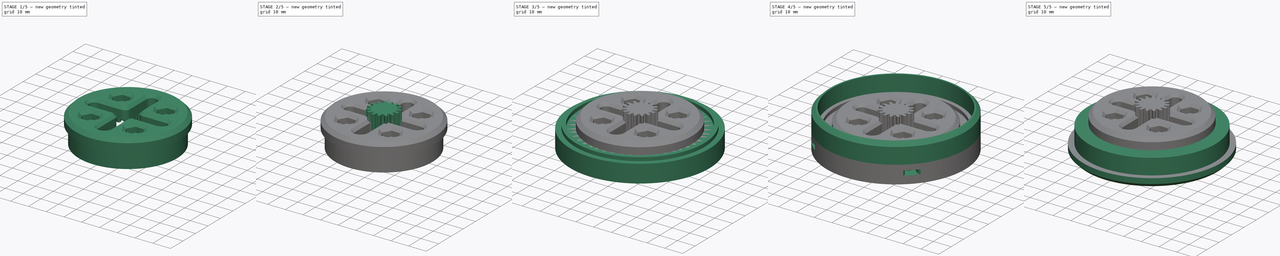
[diagram: build sequence overview — one tinted view per stage of 5, left to right]
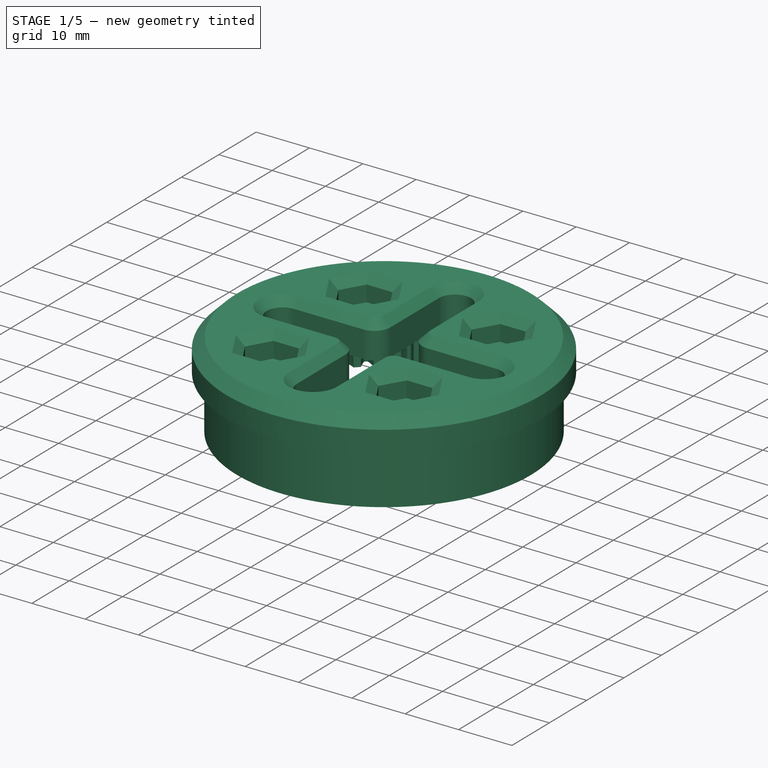
[diagram: stage 1 of 5 — iso view after this stage's code; geometry added in this stage tinted green]
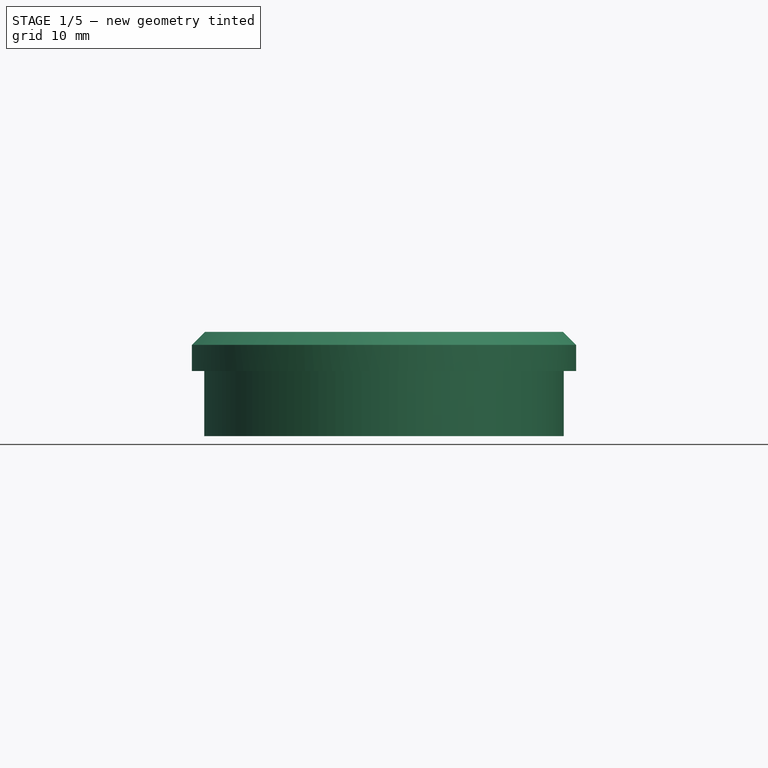
[diagram: stage 1 of 5 — front view after this stage's code; geometry added in this stage tinted green]
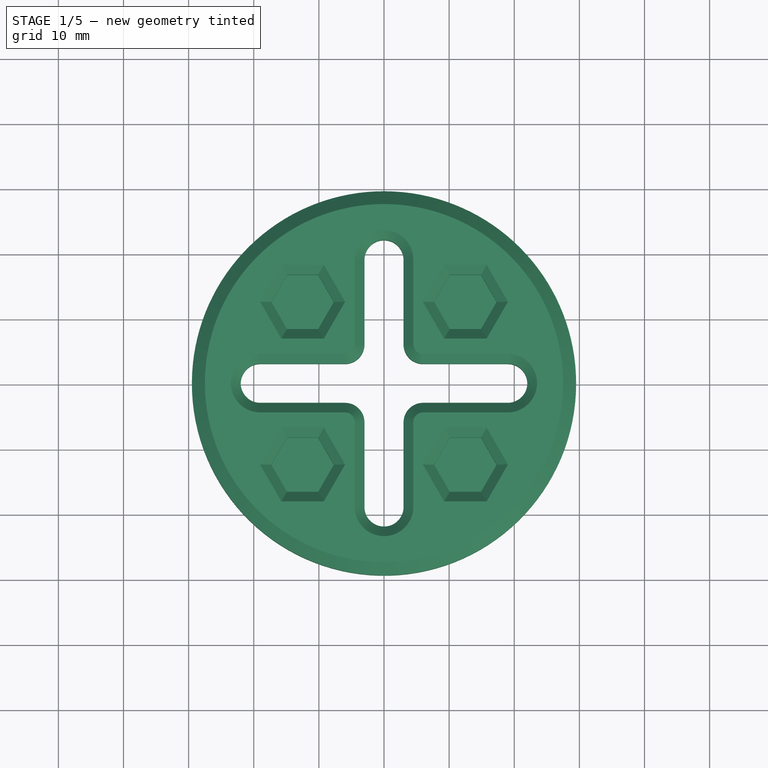
[diagram: stage 1 of 5 — top view after this stage's code; geometry added in this stage tinted green]
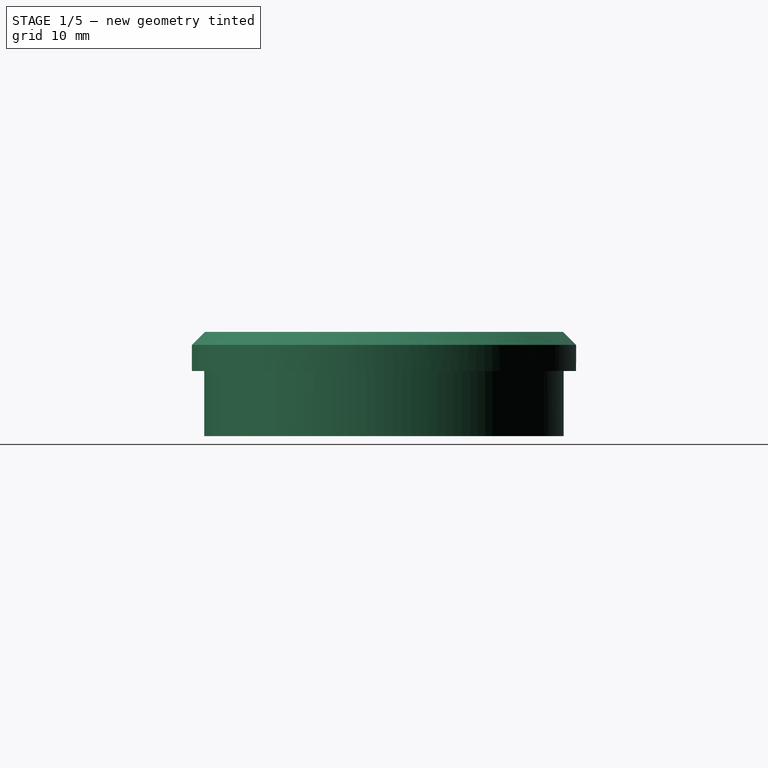
[diagram: stage 1 of 5 — right view after this stage's code; geometry added in this stage tinted green]
FCSTD DOCUMENT  (FreeCAD 2023.131R26244 +5365 (Git))
Label: gearbox-v3
License: All rights reserved
LicenseURL: http://en.wikipedia.org/wiki/All_rights_reserved
objects: Sketcher::SketchObject×20, PartDesign::Pad×12, PartDesign::Pocket×9, PartDesign::Body×7, Part::Part2DObjectPython×6, PartDesign::Chamfer×5, PartDesign::Groove×4, PartDesign::Hole×3, App::Link×2, Spreadsheet::Sheet×1, PartDesign::ShapeBinder×1, PartDesign::SubShapeBinder×1, PartDesign::PolarPattern×1
note: 157 computed .brp shape members not serialized (recipe doc carries the construction recipe); baked Part::Feature solids carry a one-line shape summary decoded from their .brp

FEATURE [Part::Part2DObjectPython] InvoluteGear002  label="s2-sun-gear"  # Draft 2D object (typed FeaturePython)
  ExternalGear = true
  HighPrecision = false
  InvalidShape = false
  Modules = 0.99
  NumberOfTeeth = 18
  PressureAngle = 20
  TreeRank = 0
  ValidateShape = true
  expr: Modules = <<sp>>.s2_module - <<sp>>.s2_clearance
  expr: NumberOfTeeth = <<sp>>.s2sun_teeth
FEATURE [Part::Part2DObjectPython] InvoluteGear003  label="s2-ring-gear"  # Draft 2D object (typed FeaturePython)
  ExternalGear = false
  HighPrecision = false
  InvalidShape = false
  Modules = 1.01
  NumberOfTeeth = 48
  PressureAngle = 20
  TreeRank = 0
  ValidateShape = true
  expr: Modules = <<sp>>.s2_module + <<sp>>.s2_clearance
  expr: NumberOfTeeth = <<sp>>.s2ring_teeth
FEATURE [Sketcher::SketchObject] Sketch001
  ArcFitTolerance = 0
  AttachmentSupport = -> [XY_Plane002]
  ExternalBSplineMaxDegree = 0
  ExternalBSplineTolerance = 0
  FullyConstrained = true
  InternalTolerance = 1e-06
  InvalidShape = false
  MakeInternals = false
  MapMode = 5
  Support = -> [XY_Plane002]
  TreeRank = 0
  ValidateShape = true
  sketch-geometry (1):
    g0: Circle CenterX=0 CenterY=0 CenterZ=0 NormalX=0 NormalY=0 NormalZ=1 AngleXU=0 Radius=27.6
  constraints (2):
    c: Coincident(g0,g-1)
    c: Diameter(g0) = 55.2  'outer_diameter (55.2 for good fit)'
FEATURE [PartDesign::Pad] Pad002
  AddSubType = 0
  AlongSketchNormal = false
  AutoTaperInnerAngle = true
  CheckUpToFaceLimits = true
  ClaimChildren = false
  Direction = (0,0,1)
  Fit = 0
  FitJoin = 0
  InnerFit = 0
  InnerFitJoin = 0
  InvalidShape = false
  Length = 16
  Length2 = 0
  NewSolid = false
  Profile = -> Sketch001
  Suppress = false
  TaperInnerAngle = 0
  TaperInnerAngleRev = 0
  TreeRank = 0
  Type = 0
  ValidateShape = true
  _ProfileBasedVersion = 0
FEATURE [PartDesign::Pocket] Pocket001
  AddSubType = 1
  AutoTaperInnerAngle = true
  BaseFeature = -> Pad002
  CheckUpToFaceLimits = true
  ClaimChildren = false
  Fit = 0
  FitJoin = 0
  InnerFit = 0
  InnerFitJoin = 0
  InvalidShape = false
  Length = 9.5
  Length2 = 100
  NewSolid = false
  Profile = -> InvoluteGear003
  Reversed = true
  Suppress = false
  TaperInnerAngle = 0
  TaperInnerAngleRev = 0
  TreeRank = 0
  Type = 0
  ValidateShape = true
  _ProfileBasedVersion = 0
  _Version = 0
FEATURE [PartDesign::Body] Body006  label="Bearing"
  AutoGroupSolids = false
  ClaimAllChildren = false
  ExportMode = 0
  Group = -> [Sketch011,Pad010]
  InvalidShape = false
  Origin = -> Origin006
  Placement = pos=(0,0,12) rot=(0,0,1;0rad)
  Tip = -> Pad010
  TreeRank = 0
  ValidateShape = true
  _ExportChildren = -> [Pad010]
  _GroupVersion = 1
FEATURE [Sketcher::SketchObject] Sketch012
  ArcFitTolerance = 0
  AttachmentSupport = -> [Pocket001]
  ExternalBSplineMaxDegree = 0
  ExternalBSplineTolerance = 0
  FullyConstrained = true
  InternalTolerance = 1e-06
  InvalidShape = false
  MakeInternals = false
  MapMode = 5
  Placement = pos=(0,0,16) rot=(0,0,1;0rad)
  Support = -> [Pocket001]
  TreeRank = 0
  ValidateShape = true
  sketch-geometry (2):
    g0: Circle CenterX=0 CenterY=0 CenterZ=0 NormalX=0 NormalY=0 NormalZ=1 AngleXU=0 Radius=27.6
    g1: Circle CenterX=0 CenterY=0 CenterZ=0 NormalX=0 NormalY=0 NormalZ=1 AngleXU=0 Radius=29.5
  constraints (4):
    c: Coincident(g0,g-1)
    c: Diameter(g0) = 55.2
    c: Coincident(g1,g0)
    c: Diameter(g1) = 59
FEATURE [PartDesign::Pad] Pad011
  AddSubType = 0
  AlongSketchNormal = false
  AutoTaperInnerAngle = true
  BaseFeature = -> Pocket001
  CheckUpToFaceLimits = true
  ClaimChildren = false
  Direction = (0,0,1)
  Fit = 0
  FitJoin = 0
  InnerFit = 0
  InnerFitJoin = 0
  InvalidShape = false
  Length = 6
  Length2 = 100
  NewSolid = false
  Profile = -> Sketch012
  Reversed = true
  Suppress = false
  TaperInnerAngle = 0
  TaperInnerAngleRev = 0
  TreeRank = 0
  Type = 0
  ValidateShape = true
  _ProfileBasedVersion = 0
FEATURE [Sketcher::SketchObject] Sketch019
  ArcFitTolerance = 0
  ExternalBSplineMaxDegree = 0
  ExternalBSplineTolerance = 0
  FullyConstrained = true
  InternalTolerance = 1e-06
  InvalidShape = false
  MakeInternals = false
  MapMode = 5
  Placement = pos=(0,0,16) rot=(0,0,1;0rad)
  TreeRank = 0
  ValidateShape = true
  sketch-geometry (33):
    g0: LineSegment [constr] StartX=-12.5 StartY=-12.5 StartZ=0 EndX=-12.5 EndY=12.5 EndZ=0
    g1: LineSegment [constr] StartX=-12.5 StartY=12.5 StartZ=0 EndX=12.5 EndY=12.5 EndZ=0
    g2: LineSegment [constr] StartX=12.5 StartY=12.5 StartZ=0 EndX=12.5 EndY=-12.5 EndZ=0
    g3: LineSegment [constr] StartX=12.5 StartY=-12.5 StartZ=0 EndX=-12.5 EndY=-12.5 EndZ=0
    g4: GeomPoint [constr] X=0 Y=0 Z=0
    g5: LineSegment StartX=-14.9 StartY=16.6569 StartZ=0 EndX=-17.3 EndY=12.5 EndZ=0
    g6: LineSegment StartX=-17.3 StartY=12.5 StartZ=0 EndX=-14.9 EndY=8.34308 EndZ=0
    g7: LineSegment StartX=-14.9 StartY=8.34308 StartZ=0 EndX=-10.1 EndY=8.34308 EndZ=0
    g8: LineSegment StartX=-10.1 StartY=8.34308 StartZ=0 EndX=-7.7 EndY=12.5 EndZ=0
    g9: LineSegment StartX=-7.7 StartY=12.5 StartZ=0 EndX=-10.1 EndY=16.6569 EndZ=0
    g10: LineSegment StartX=-10.1 StartY=16.6569 StartZ=0 EndX=-14.9 EndY=16.6569 EndZ=0
    g11: Circle [constr] CenterX=-12.5 CenterY=12.5 CenterZ=0 NormalX=0 NormalY=0 NormalZ=1 AngleXU=0 Radius=4.8
    g12: LineSegment StartX=10.1 StartY=16.6569 StartZ=0 EndX=7.7 EndY=12.5 EndZ=0
    g13: LineSegment StartX=7.7 StartY=12.5 StartZ=0 EndX=10.1 EndY=8.34308 EndZ=0
    g14: LineSegment StartX=10.1 StartY=8.34308 StartZ=0 EndX=14.9 EndY=8.34308 EndZ=0
    g15: LineSegment StartX=14.9 StartY=8.34308 StartZ=0 EndX=17.3 EndY=12.5 EndZ=0
    g16: LineSegment StartX=17.3 StartY=12.5 StartZ=0 EndX=14.9 EndY=16.6569 EndZ=0
    g17: LineSegment StartX=14.9 StartY=16.6569 StartZ=0 EndX=10.1 EndY=16.6569 EndZ=0
    g18: Circle [constr] CenterX=12.5 CenterY=12.5 CenterZ=0 NormalX=0 NormalY=0 NormalZ=1 AngleXU=0 Radius=4.8
    g19: LineSegment StartX=10.1 StartY=-8.34308 StartZ=0 EndX=7.7 EndY=-12.5 EndZ=0
    g20: LineSegment StartX=7.7 StartY=-12.5 StartZ=0 EndX=10.1 EndY=-16.6569 EndZ=0
    g21: LineSegment StartX=10.1 StartY=-16.6569 StartZ=0 EndX=14.9 EndY=-16.6569 EndZ=0
    g22: LineSegment StartX=14.9 StartY=-16.6569 StartZ=0 EndX=17.3 EndY=-12.5 EndZ=0
    g23: LineSegment StartX=17.3 StartY=-12.5 StartZ=0 EndX=14.9 EndY=-8.34308 EndZ=0
    g24: LineSegment StartX=14.9 StartY=-8.34308 StartZ=0 EndX=10.1 EndY=-8.34308 EndZ=0
    g25: Circle [constr] CenterX=12.5 CenterY=-12.5 CenterZ=0 NormalX=0 NormalY=0 NormalZ=1 AngleXU=0 Radius=4.8
    g26: LineSegment StartX=-14.9 StartY=-8.34308 StartZ=0 EndX=-17.3 EndY=-12.5 EndZ=0
    g27: LineSegment StartX=-17.3 StartY=-12.5 StartZ=0 EndX=-14.9 EndY=-16.6569 EndZ=0
    g28: LineSegment StartX=-14.9 StartY=-16.6569 StartZ=0 EndX=-10.1 EndY=-16.6569 EndZ=0
    g29: LineSegment StartX=-10.1 StartY=-16.6569 StartZ=0 EndX=-7.7 EndY=-12.5 EndZ=0
    g30: LineSegment StartX=-7.7 StartY=-12.5 StartZ=0 EndX=-10.1 EndY=-8.34308 EndZ=0
    g31: LineSegment StartX=-10.1 StartY=-8.34308 StartZ=0 EndX=-14.9 EndY=-8.34308 EndZ=0
    g32: Circle [constr] CenterX=-12.5 CenterY=-12.5 CenterZ=0 NormalX=0 NormalY=0 NormalZ=1 AngleXU=0 Radius=4.8
  constraints (76):
    c: Coincident(g0,g1)
    c: Coincident(g1,g2)
    c: Coincident(g2,g3)
    c: Coincident(g3,g0)
    c: Horizontal(g1)
    c: Horizontal(g3)
    c: Vertical(g0)
    c: Vertical(g2)
    c: Symmetric(g1,g0,g4)
    c: Coincident(g4,g-1)
    c: Equal(g1,g2)
    c: Distance(g1) = 25
    c: Coincident(g5,g6)
    c: Coincident(g6,g7)
    c: Coincident(g7,g8)
    c: Coincident(g8,g9)
    c: Coincident(g9,g10)
    c: Coincident(g10,g5)
    c: Equal(g5, g6-g10) x5
    c: PointOnObject(g5,g11)
    c: PointOnObject(g6,g11)
    c: PointOnObject(g7,g11)
    c: PointOnObject(g8,g11)
    c: PointOnObject(g9,g11)
    c: PointOnObject(g10,g11)
    c: Coincident(g11,g0)
    c: Coincident(g12,g13)
    c: Coincident(g13,g14)
    c: Coincident(g14,g15)
    c: Coincident(g15,g16)
    c: Coincident(g16,g17)
    c: Coincident(g17,g12)
    c: Equal(g12, g13-g17) x5
    c: PointOnObject(g12,g18)
    c: PointOnObject(g13,g18)
    c: PointOnObject(g14,g18)
    c: PointOnObject(g15,g18)
    c: PointOnObject(g16,g18)
    c: PointOnObject(g17,g18)
    c: Coincident(g18,g1)
    c: Coincident(g19,g20)
    c: Coincident(g20,g21)
    c: Coincident(g21,g22)
    c: Coincident(g22,g23)
    c: Coincident(g23,g24)
    c: Coincident(g24,g19)
    c: Equal(g19, g20-g24) x5
    c: PointOnObject(g19,g25)
    c: PointOnObject(g20,g25)
    c: PointOnObject(g21,g25)
    c: PointOnObject(g22,g25)
    c: PointOnObject(g23,g25)
    c: PointOnObject(g24,g25)
    c: Coincident(g25,g2)
    c: Coincident(g26,g27)
    c: Coincident(g27,g28)
    c: Coincident(g28,g29)
    c: Coincident(g29,g30)
    c: Coincident(g30,g31)
    c: Coincident(g31,g26)
    c: Equal(g26, g27-g31) x5
    c: PointOnObject(g26,g32)
    c: PointOnObject(g27,g32)
    c: PointOnObject(g28,g32)
    c: PointOnObject(g29,g32)
    c: PointOnObject(g30,g32)
    c: PointOnObject(g31,g32)
    c: Coincident(g32,g0)
    c: Equal(g31,g10)
    c: Equal(g10,g17)
    c: Equal(g17,g24)
    c: Horizontal(g10)
    c: Horizontal(g17)
    c: Horizontal(g24)
    c: Horizontal(g31)
    c: Distance(g17) = 4.8
FEATURE [PartDesign::Pocket] Pocket009
  AddSubType = 1
  AutoTaperInnerAngle = true
  BaseFeature = -> Pad011
  CheckUpToFaceLimits = true
  ClaimChildren = false
  Fit = 0
  FitJoin = 0
  InnerFit = 0
  InnerFitJoin = 0
  InvalidShape = false
  Length = 4.5
  Length2 = 100
  NewSolid = false
  Profile = -> Sketch019
  Suppress = false
  TaperInnerAngle = 0
  TaperInnerAngleRev = 0
  TreeRank = 0
  Type = 0
  ValidateShape = true
  _ProfileBasedVersion = 0
  _Version = 0
FEATURE [Sketcher::SketchObject] Sketch020
  ArcFitTolerance = 0
  AttachmentSupport = -> [Pocket009]
  ExternalBSplineMaxDegree = 0
  ExternalBSplineTolerance = 0
  FullyConstrained = true
  InternalTolerance = 1e-06
  InvalidShape = false
  MakeInternals = false
  MapMode = 5
  Placement = pos=(0,0,16) rot=(0,0,1;0rad)
  Support = -> [Pocket009]
  TreeRank = 0
  ValidateShape = true
  sketch-geometry (21):
    g0: LineSegment StartX=-3 StartY=19 StartZ=0 EndX=-3 EndY=6 EndZ=0
    g1: LineSegment StartX=3 StartY=19 StartZ=0 EndX=3 EndY=6 EndZ=0
    g2: LineSegment StartX=6 StartY=3 StartZ=0 EndX=19 EndY=3 EndZ=0
    g3: LineSegment StartX=6 StartY=-3 StartZ=0 EndX=19 EndY=-3 EndZ=0
    g4: LineSegment StartX=-6 StartY=3 StartZ=0 EndX=-19 EndY=3 EndZ=0
    g5: LineSegment StartX=-19 StartY=-3 StartZ=0 EndX=-6 EndY=-3 EndZ=0
    g6: LineSegment StartX=-3 StartY=-6 StartZ=0 EndX=-3 EndY=-19 EndZ=0
    g7: LineSegment StartX=3 StartY=-6 StartZ=0 EndX=3 EndY=-19 EndZ=0
    g8: ArcOfCircle CenterX=-6 CenterY=6 CenterZ=0 NormalX=0 NormalY=0 NormalZ=1 AngleXU=0 Radius=3 StartAngle=4.71239 EndAngle=6.28319
    g9: ArcOfCircle CenterX=1e-16 CenterY=19 CenterZ=0 NormalX=0 NormalY=0 NormalZ=1 AngleXU=0 Radius=3 StartAngle=0 EndAngle=3.14159
    g10: ArcOfCircle CenterX=6 CenterY=6 CenterZ=0 NormalX=0 NormalY=0 NormalZ=1 AngleXU=0 Radius=3 StartAngle=3.14159 EndAngle=4.71239
    g11: ArcOfCircle CenterX=19 CenterY=-4e-16 CenterZ=0 NormalX=0 NormalY=0 NormalZ=1 AngleXU=0 Radius=3 StartAngle=4.71239 EndAngle=7.85398
    g12: ArcOfCircle CenterX=6 CenterY=-6 CenterZ=0 NormalX=0 NormalY=0 NormalZ=1 AngleXU=0 Radius=3 StartAngle=1.5708 EndAngle=3.14159
    g13: ArcOfCircle CenterX=-8e-16 CenterY=-19 CenterZ=0 NormalX=0 NormalY=0 NormalZ=1 AngleXU=0 Radius=3 StartAngle=3.14159 EndAngle=6.28319
    g14: ArcOfCircle CenterX=-6 CenterY=-6 CenterZ=0 NormalX=0 NormalY=0 NormalZ=1 AngleXU=0 Radius=3 StartAngle=0 EndAngle=1.5708
    g15: ArcOfCircle CenterX=-19 CenterY=4e-16 CenterZ=0 NormalX=0 NormalY=0 NormalZ=1 AngleXU=0 Radius=3 StartAngle=1.5708 EndAngle=4.71239
    g16: LineSegment [constr] StartX=-6 StartY=-6 StartZ=0 EndX=-6 EndY=6 EndZ=0
    g17: LineSegment [constr] StartX=-6 StartY=6 StartZ=0 EndX=6 EndY=6 EndZ=0
    g18: LineSegment [constr] StartX=6 StartY=6 StartZ=0 EndX=6 EndY=-6 EndZ=0
    g19: LineSegment [constr] StartX=6 StartY=-6 StartZ=0 EndX=-6 EndY=-6 EndZ=0
    g20: GeomPoint [constr] X=0 Y=0 Z=0
  constraints (52):
    c: Vertical(g0)
    c: Vertical(g1)
    c: Horizontal(g2)
    c: Horizontal(g3)
    c: Horizontal(g4)
    c: Horizontal(g5)
    c: Vertical(g6)
    c: Vertical(g7)
    c: Equal(g0,g1)
    c: Equal(g1,g2)
    c: Equal(g2,g3)
    c: Equal(g3,g4)
    c: Equal(g4,g5)
    c: Equal(g5,g6)
    c: Equal(g6,g7)
    c: Tangent(g4,g8) = 1.5708
    c: Tangent(g0,g9) = -1.5708
    c: Tangent(g1,g10) = -1.5708
    c: Tangent(g2,g11) = 1.5708
    c: Tangent(g3,g12) = 1.5708
    c: Coincident(g12,g7)
    c: Tangent(g7,g13) = 1.5708
    c: Tangent(g6,g14) = 1.5708
    c: Coincident(g14,g5)
    c: Tangent(g5,g15) = -1.5708
    c: Coincident(g15,g4)
    c: Equal(g15,g11)
    c: Equal(g11,g9)
    c: Equal(g9,g13)
    c: Equal(g13,g14)
    c: Equal(g14,g12)
    c: Equal(g12,g10)
    c: Equal(g10,g8)
    c: Tangent(g10,g2) = -1.5708
    c: Tangent(g8,g0) = 1.5708
    c: Tangent(g9,g1) = 1.5708
    c: Tangent(g13,g6) = -1.5708
    c: Tangent(g11,g3) = -1.5708
    c: Vertical(g4,g5)
    c: Coincident(g16,g17)
    c: Coincident(g17,g18)
    c: Coincident(g18,g19)
    c: Coincident(g19,g16)
    c: Horizontal(g17)
    c: Vertical(g16)
    c: Symmetric(g17,g16,g20)
    c: Coincident(g20,g-1)
    c: Coincident(g17,g10)
    c: Coincident(g18,g12)
    c: Coincident(g16,g14)
    c: Distance(g17) = 12
    c: Distance(g2) = 13
FEATURE [PartDesign::Pocket] Pocket010
  AddSubType = 1
  AutoTaperInnerAngle = true
  BaseFeature = -> Pocket009
  CheckUpToFaceLimits = true
  ClaimChildren = false
  Fit = 0
  FitJoin = 0
  InnerFit = 0
  InnerFitJoin = 0
  InvalidShape = false
  Length = 8
  Length2 = 100
  NewSolid = false
  Profile = -> Sketch020
  Suppress = false
  TaperInnerAngle = 0
  TaperInnerAngleRev = 0
  TreeRank = 0
  Type = 0
  ValidateShape = true
  _ProfileBasedVersion = 0
  _Version = 0
FEATURE [PartDesign::Body] Body003  label="S2-Sun"
  AutoGroupSolids = false
  ClaimAllChildren = false
  ExportMode = 0
  Group = -> [InvoluteGear002,Pad005,Sketch010,Pocket006,Sketch028,Groove004]
  InvalidShape = false
  Origin = -> Origin003
  Placement = pos=(0,0,10) rot=(0,0,1;0rad)
  Tip = -> Groove004
  TreeRank = 0
  ValidateShape = true
  _ExportChildren = -> [Pad005,Pocket006,Groove004]
  _GroupVersion = 1
FEATURE [PartDesign::Chamfer] Chamfer
  AddSubType = 0
  Angle = 45
  Base = -> Pocket010 [Face311]
  BaseFeature = -> Pocket010
  ChamferType = 0
  FlipDirection = false
  InvalidShape = false
  NewSolid = false
  Size = 1.5
  Size2 = 1
  SupportTransform = false
  Suppress = false
  TreeRank = 1
  ValidateShape = true
FEATURE [PartDesign::Chamfer] Chamfer005
  AddSubType = 0
  Angle = 45
  Base = -> Chamfer [Edge972]
  BaseFeature = -> Chamfer
  ChamferType = 0
  FlipDirection = false
  InvalidShape = false
  NewSolid = false
  Size = 2
  Size2 = 1
  SupportTransform = false
  Suppress = false
  TreeRank = 2
  ValidateShape = true
FEATURE [PartDesign::Body] Body002  label="S2-Ring"
  AutoGroupSolids = false
  ClaimAllChildren = false
  ExportMode = 0
  Group = -> [Sketch001,Pad002,InvoluteGear003,Pocket001,Sketch012,Pad011,Sketch019,Pocket009,Sketch020,Pocket010,Chamfer,Chamfer005]
  InvalidShape = false
  Origin = -> Origin002
  Placement = pos=(0,0,11) rot=(0,0,1;0.069813rad)
  Tip = -> Chamfer005
  TreeRank = 0
  ValidateShape = true
  _ExportChildren = -> [Pad002,Pocket001,Pad011,Pocket009,Pocket010,Chamfer,Chamfer005]
  _GroupVersion = 1
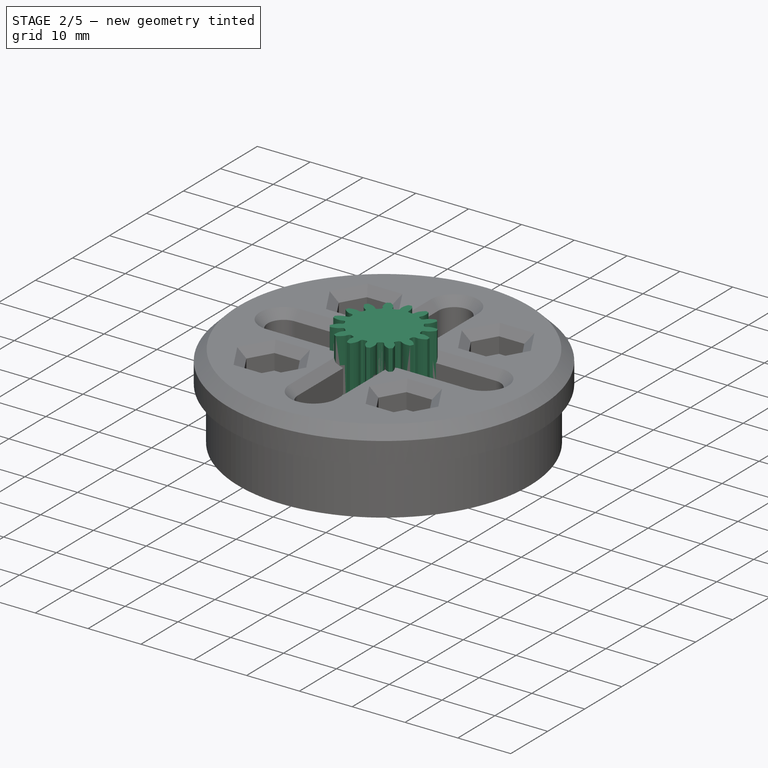
[diagram: stage 2 of 5 — iso view after this stage's code; geometry added in this stage tinted green]
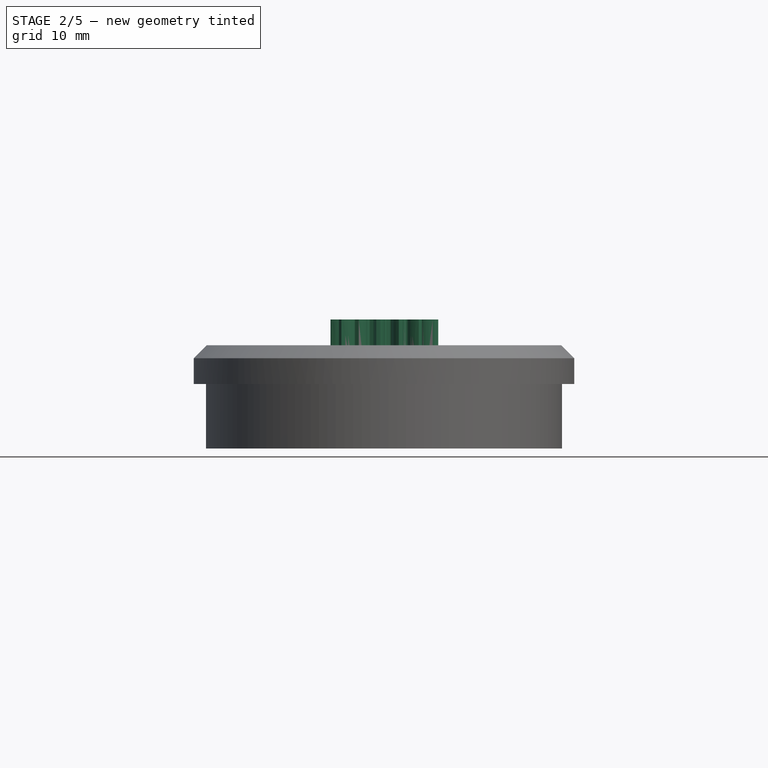
[diagram: stage 2 of 5 — front view after this stage's code; geometry added in this stage tinted green]
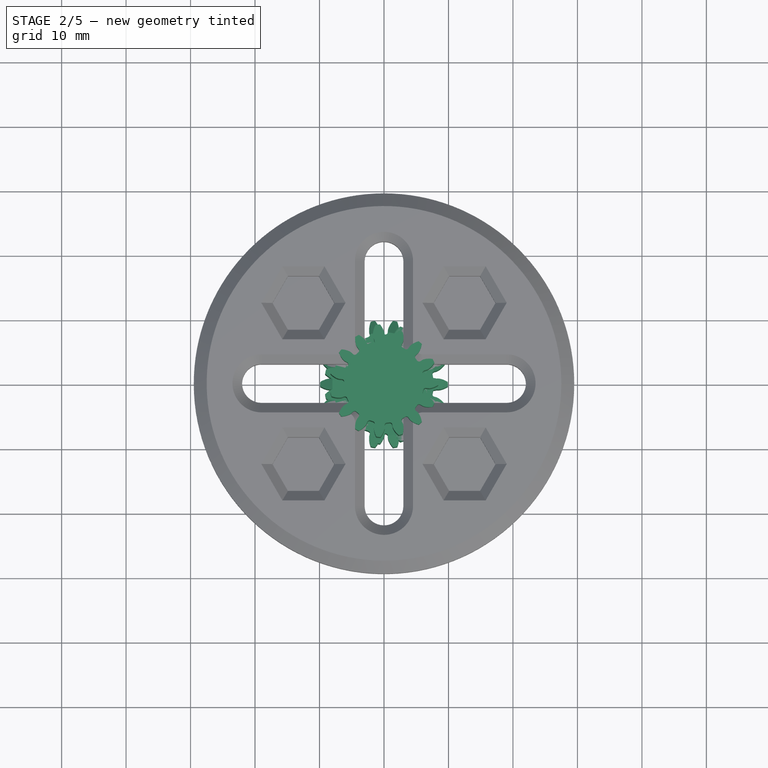
[diagram: stage 2 of 5 — top view after this stage's code; geometry added in this stage tinted green]
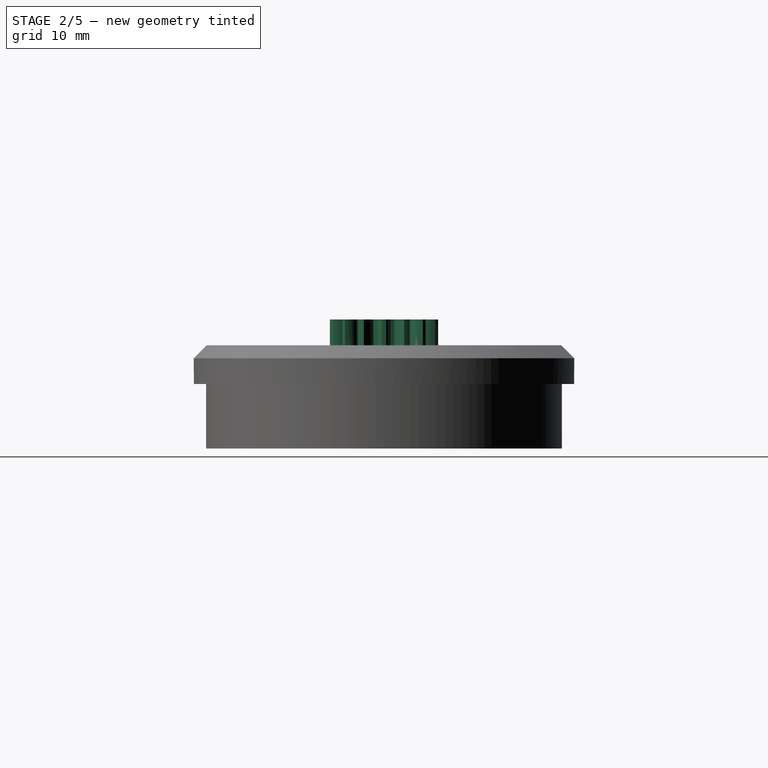
[diagram: stage 2 of 5 — right view after this stage's code; geometry added in this stage tinted green]
FEATURE [PartDesign::Pad] Pad005
  AddSubType = 0
  AlongSketchNormal = false
  AutoTaperInnerAngle = true
  CheckUpToFaceLimits = true
  ClaimChildren = false
  Direction = (0,0,1)
  Fit = 0
  FitJoin = 0
  InnerFit = 0
  InnerFitJoin = 0
  InvalidShape = false
  Length = 10
  Length2 = 100
  NewSolid = false
  Profile = -> InvoluteGear002
  Suppress = false
  TaperInnerAngle = 0
  TaperInnerAngleRev = 0
  TreeRank = 0
  Type = 0
  ValidateShape = true
  _ProfileBasedVersion = 0
FEATURE [PartDesign::Pad] Pad
  AddSubType = 0
  AlongSketchNormal = false
  AutoTaperInnerAngle = true
  CheckUpToFaceLimits = true
  ClaimChildren = false
  Direction = (0,0,1)
  Fit = 0
  FitJoin = 0
  InnerFit = 0
  InnerFitJoin = 0
  InvalidShape = false
  Length = 10
  Length2 = 100
  NewSolid = false
  Profile = -> InvoluteGear
  Suppress = false
  TaperInnerAngle = 0
  TaperInnerAngleRev = 0
  TreeRank = 0
  Type = 0
  ValidateShape = true
  _ProfileBasedVersion = 0
FEATURE [Part::Part2DObjectPython] InvoluteGear005  label="s1-planet-gear"  # Draft 2D object (typed FeaturePython)
  ExternalGear = true
  HighPrecision = false
  InvalidShape = false
  Modules = 1.09
  NumberOfTeeth = 15
  PressureAngle = 20
  TreeRank = 0
  ValidateShape = true
  expr: Modules = <<sp>>.s1_module - <<sp>>.s1_clearance
  expr: NumberOfTeeth = <<sp>>.s1planet_teeth
FEATURE [PartDesign::Pad] Pad008  label="S1-Planet"
  AddSubType = 0
  AlongSketchNormal = false
  AutoTaperInnerAngle = true
  CheckUpToFaceLimits = true
  ClaimChildren = false
  Direction = (0,0,1)
  Fit = 0
  FitJoin = 0
  InnerFit = 0
  InnerFitJoin = 0
  InvalidShape = false
  Length = 10
  Length2 = 100
  NewSolid = false
  Profile = -> InvoluteGear005
  Suppress = false
  TaperInnerAngle = 0
  TaperInnerAngleRev = 0
  TreeRank = 0
  Type = 0
  ValidateShape = true
  _ProfileBasedVersion = 0
FEATURE [App::Link] Link  label="Planet - Link 1"
  AutoLinkLabel = false
  AutoPlacement = true
  LinkPlacement = pos=(-8.25,14.2894,0) rot=(0,0,1;0rad)
  LinkedObject = -> Body005
  Placement = pos=(-8.25,14.2894,0) rot=(0,0,1;0rad)
  SyncGroupVisibility = false
  TreeRank = 0
  _LinkVersion = 1
  expr: Placement.Base.x = <<sp>>.F14
  expr: Placement.Base.y = <<sp>>.F15
FEATURE [App::Link] Link005  label="Planet - Link 2"
  AutoLinkLabel = false
  AutoPlacement = true
  LinkPlacement = pos=(-8.25,-14.2894,0) rot=(0,0,1;0rad)
  LinkedObject = -> Body005
  Placement = pos=(-8.25,-14.2894,0) rot=(0,0,1;0rad)
  SyncGroupVisibility = false
  TreeRank = 0
  _LinkVersion = 1
  expr: Placement.Base.x = <<sp>>.G14
  expr: Placement.Base.y = <<sp>>.G15
FEATURE [Sketcher::SketchObject] Sketch010
  ArcFitTolerance = 0
  AttachmentSupport = -> [Pad005]
  ExternalBSplineMaxDegree = 0
  ExternalBSplineTolerance = 0
  FullyConstrained = true
  InternalTolerance = 1e-06
  InvalidShape = false
  MakeInternals = false
  MapMode = 5
  Placement = pos=(0,0,10) rot=(0,0,1;0rad)
  Support = -> [Pad005]
  TreeRank = 0
  ValidateShape = true
  sketch-geometry (1):
    g0: Circle CenterX=0 CenterY=0 CenterZ=0 NormalX=0 NormalY=0 NormalZ=1 AngleXU=0 Radius=6.5
  constraints (2):
    c: Coincident(g0,g-1)
    c: Diameter(g0) = 13
FEATURE [PartDesign::Pocket] Pocket006
  AddSubType = 1
  AutoTaperInnerAngle = true
  BaseFeature = -> Pad005
  CheckUpToFaceLimits = true
  ClaimChildren = false
  Fit = 0
  FitJoin = 0
  InnerFit = 0
  InnerFitJoin = 0
  InvalidShape = false
  Length = 10
  Length2 = 100
  NewSolid = false
  Profile = -> Sketch010
  Suppress = false
  TaperInnerAngle = 0
  TaperInnerAngleRev = 0
  TreeRank = 0
  Type = 0
  ValidateShape = true
  _ProfileBasedVersion = 0
  _Version = 0
FEATURE [Part::Part2DObjectPython] InvoluteGear004  label="s2-planet-gear"  # Draft 2D object (typed FeaturePython)
  ExternalGear = true
  HighPrecision = false
  InvalidShape = false
  Modules = 0.99
  NumberOfTeeth = 15
  Placement = pos=(0,0,10) rot=(0,0,1;0rad)
  PressureAngle = 20
  TreeRank = 0
  ValidateShape = true
  expr: Modules = <<sp>>.s2_module - <<sp>>.s2_clearance
  expr: NumberOfTeeth = <<sp>>.s2planet_teeth
FEATURE [PartDesign::Pad] Pad009  label="S2-Planet"
  AddSubType = 0
  AlongSketchNormal = false
  AutoTaperInnerAngle = true
  BaseFeature = -> Pad008
  CheckUpToFaceLimits = true
  ClaimChildren = false
  Direction = (0,0,1)
  Fit = 0
  FitJoin = 0
  InnerFit = 0
  InnerFitJoin = 0
  InvalidShape = false
  Length = 10
  Length2 = 100
  NewSolid = false
  Profile = -> InvoluteGear004
  Suppress = false
  TaperInnerAngle = 0
  TaperInnerAngleRev = 0
  TreeRank = 0
  Type = 0
  ValidateShape = true
  _ProfileBasedVersion = 0
FEATURE [PartDesign::Body] Body  label="S1-Sun"
  AutoGroupSolids = false
  ClaimAllChildren = false
  ExportMode = 0
  Group = -> [InvoluteGear,Pad,Sketch008,Pocket005,Sketch009,Pad007,Sketch025,Groove002]
  InvalidShape = false
  Origin = -> Origin
  Tip = -> Groove002
  TreeRank = 0
  ValidateShape = true
  _ExportChildren = -> [Pad,Pocket005,Pad007,Groove002]
  _GroupVersion = 1
FEATURE [Sketcher::SketchObject] Sketch027
  ArcFitTolerance = 0
  AttachmentSupport = -> [XZ_Plane005]
  ExternalBSplineMaxDegree = 0
  ExternalBSplineTolerance = 0
  FullyConstrained = true
  InternalTolerance = 1e-06
  InvalidShape = false
  MakeInternals = false
  MapMode = 5
  Placement = pos=(0,0,0) rot=(1,0,0;1.5708rad)
  Support = -> [XZ_Plane005]
  TreeRank = 0
  ValidateShape = true
  sketch-geometry (4):
    g0: LineSegment StartX=9.36 StartY=0 StartZ=0 EndX=9.36 EndY=1.4376 EndZ=0
    g1: LineSegment StartX=9.36 StartY=1.4376 StartZ=0 EndX=6.87 EndY=0 EndZ=0
    g2: LineSegment StartX=6.87 StartY=0 StartZ=0 EndX=8.25 EndY=0 EndZ=0
    g3: LineSegment StartX=8.25 StartY=0 StartZ=0 EndX=9.36 EndY=0 EndZ=0
  constraints (12):
    c: PointOnObject(g2,g-1)
    c: PointOnObject(g3,g-1)
    c: Coincident(g3,g0)
    c: Vertical(g0)
    c: Coincident(g0,g1)
    c: Coincident(g1,g2)
    c: Coincident(g2,g3)
    c: PointOnObject(g2,g-1)
    c: Distance(g2) = 1.38  'm*1.25'
    c: Distance(g3) = 1.11  'm'
    c: Angle(g2,g1) = 0.523599  'chamfer_angle'
    c: Distance(g-1,g2) = 8.25  'm*z'
FEATURE [PartDesign::Groove] Groove003
  AddSubType = 1
  Angle = 360
  Axis = (0,-2e-16,1)
  Base = (0,0,0)
  BaseFeature = -> Pad009
  ClaimChildren = false
  Fit = 0
  FitJoin = 0
  InnerFit = 0
  InnerFitJoin = 0
  InvalidShape = false
  NewSolid = false
  Profile = -> Sketch027
  ReferenceAxis = -> Sketch027 [V_Axis]
  Suppress = false
  TreeRank = 0
  ValidateShape = true
  _ProfileBasedVersion = 0
FEATURE [PartDesign::Body] Body005  label="Planet"
  AutoGroupSolids = false
  ClaimAllChildren = false
  ExportMode = 0
  Group = -> [InvoluteGear005,Pad008,InvoluteGear004,Pad009,Sketch027,Groove003]
  InvalidShape = false
  Origin = -> Origin005
  Placement = pos=(16.5,0,0) rot=(0,0,1;0rad)
  Tip = -> Groove003
  TreeRank = 0
  ValidateShape = true
  _ExportChildren = -> [Pad008,Pad009,Groove003]
  _GroupVersion = 1
  expr: Placement.Base.x = <<sp>>.E14
  expr: Placement.Base.y = <<sp>>.E15
FEATURE [Sketcher::SketchObject] Sketch028
  ArcFitTolerance = 0
  AttachmentSupport = -> [XZ_Plane003]
  ExternalBSplineMaxDegree = 0
  ExternalBSplineTolerance = 0
  FullyConstrained = true
  InternalTolerance = 1e-06
  InvalidShape = false
  MakeInternals = false
  MapMode = 5
  Placement = pos=(0,0,0) rot=(1,0,0;1.5708rad)
  Support = -> [XZ_Plane003]
  TreeRank = 0
  ValidateShape = true
  sketch-geometry (4):
    g0: LineSegment StartX=10.25 StartY=10.01 StartZ=0 EndX=10.25 EndY=8.71096 EndZ=0
    g1: LineSegment StartX=10.25 StartY=8.71096 StartZ=0 EndX=8 EndY=10.01 EndZ=0
    g2: LineSegment StartX=8 StartY=10.01 StartZ=0 EndX=9 EndY=10.01 EndZ=0
    g3: LineSegment StartX=9 StartY=10.01 StartZ=0 EndX=10.25 EndY=10.01 EndZ=0
  constraints (12):
    c: Coincident(g3,g0)
    c: Vertical(g0)
    c: Coincident(g0,g1)
    c: Coincident(g1,g2)
    c: Coincident(g2,g3)
    c: Distance(g2) = 1  'm*1.25'
    c: Distance(g3) = 1.25  'm'
    c: DistanceX(g-1,g2) = 9
    c: Horizontal(g3)
    c: Horizontal(g2)
    c: Angle(g1,g3) = 0.523599
    c: DistanceY(g-1,g2) = 10.01
FEATURE [PartDesign::Groove] Groove004
  AddSubType = 1
  Angle = 360
  Axis = (0,-2e-16,1)
  Base = (0,0,0)
  BaseFeature = -> Pocket006
  ClaimChildren = false
  Fit = 0
  FitJoin = 0
  InnerFit = 0
  InnerFitJoin = 0
  InvalidShape = false
  NewSolid = false
  Profile = -> Sketch028
  ReferenceAxis = -> Sketch028 [V_Axis]
  Suppress = false
  TreeRank = 0
  ValidateShape = true
  _ProfileBasedVersion = 0
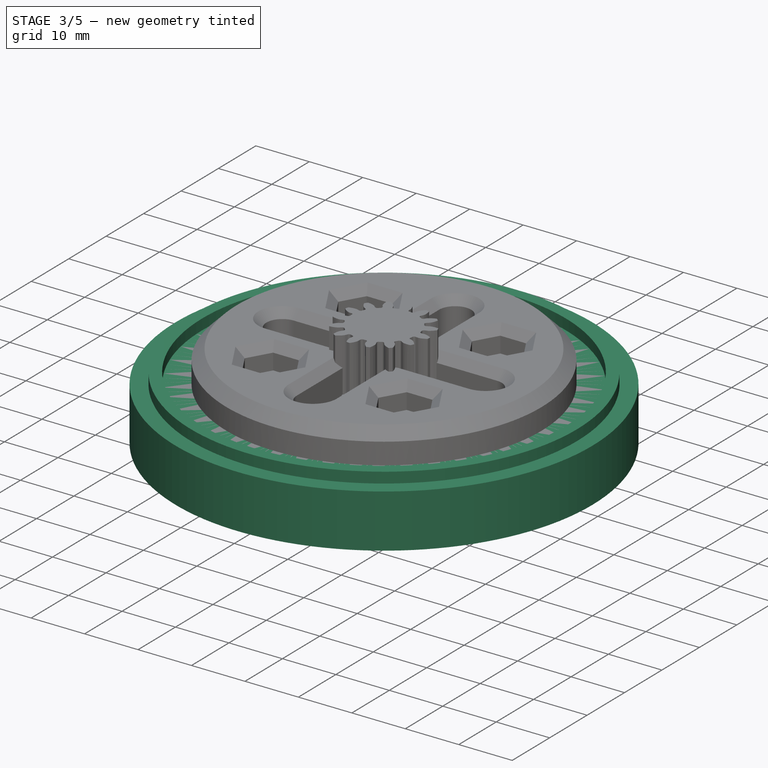
[diagram: stage 3 of 5 — iso view after this stage's code; geometry added in this stage tinted green]
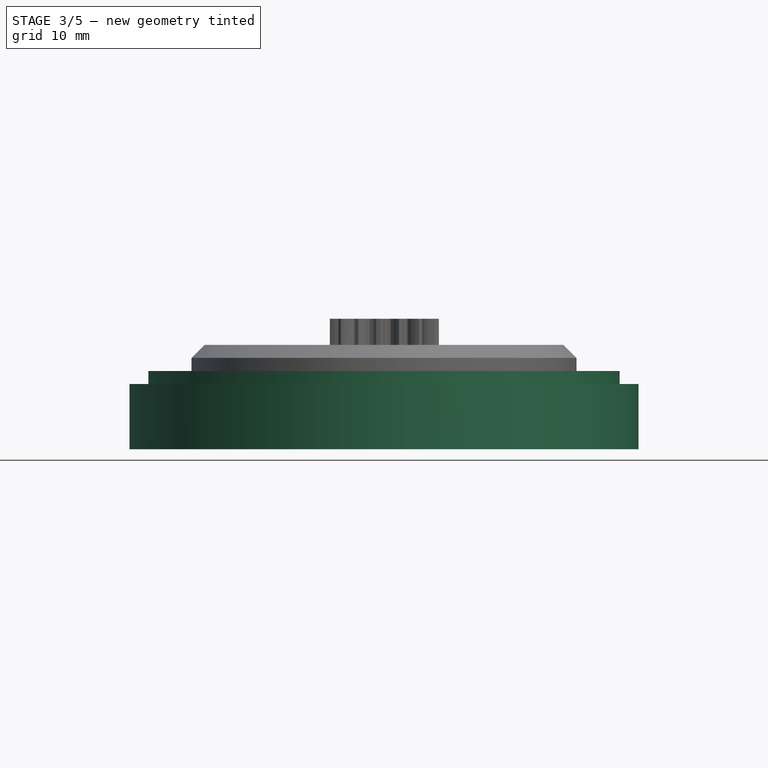
[diagram: stage 3 of 5 — front view after this stage's code; geometry added in this stage tinted green]
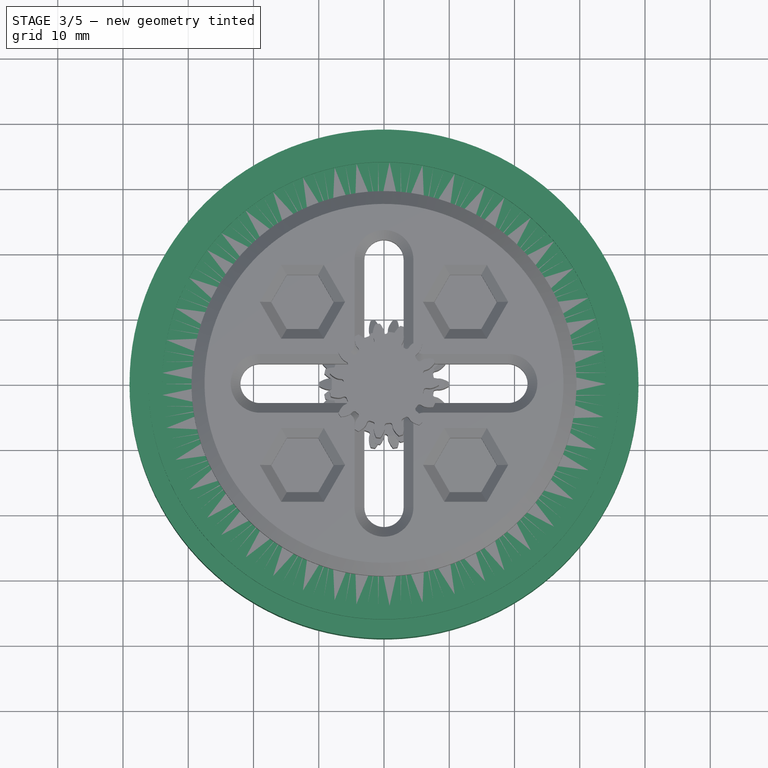
[diagram: stage 3 of 5 — top view after this stage's code; geometry added in this stage tinted green]
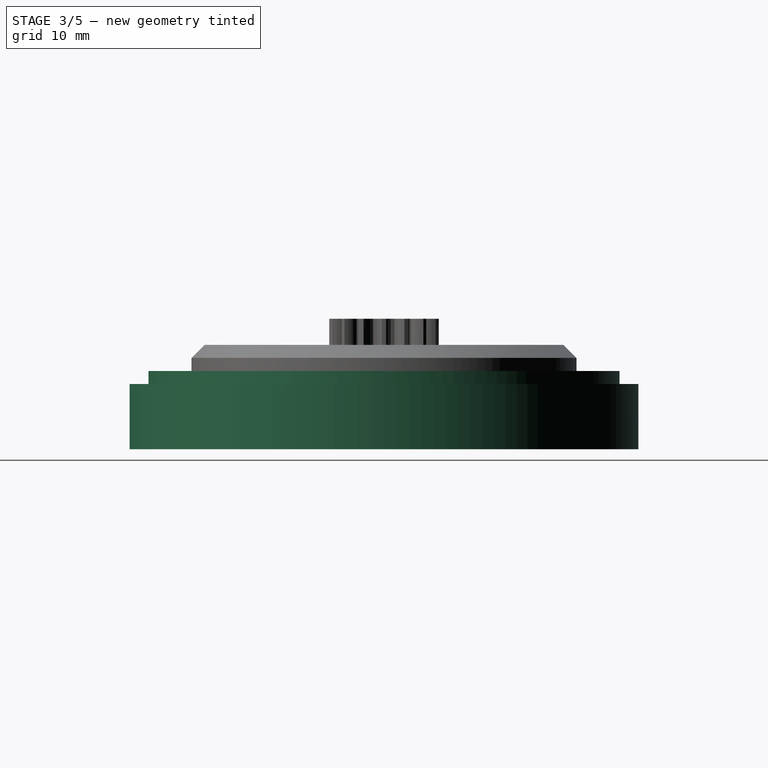
[diagram: stage 3 of 5 — right view after this stage's code; geometry added in this stage tinted green]
FEATURE [Spreadsheet::Sheet] Spreadsheet  label="sp"
  PythonMode = false
  ShowCells = 0
  TreeRank = 0
  cells = D6=Teeth; I6=Gear diameter; A7=Clearance; B7=Ratio; D7=Ring; E7=Sun; F7=Planet; H7=Module; I7=Ring; J7=Sun; K7=Planet; M7=Dist to planet; A8(s1_clearance)=0.01; B8(transmission_ratio)==1 / ((D9 - D8 / F8 * F9) / D9 * E8 / (D8 + E8)); D8(s1ring_teeth)==E8 + F8 * 2; E8(s1sun_teeth)=15; F8(s1planet_teeth)=15; H8(s1_module)=1.1; I8(s1ring_diameter)==D8 * H8; J8(s1sun_diameter)==E8 * H8; K8(s1planet_diameter)==F8 * H8; M8(sun_to_planet_distance)==(J8 + K8) / 2; A9(s2_clearance)=0.01; D9(s2ring_teeth)==E9 + F9 * 2; E9(s2sun_teeth)=18; F9(s2planet_teeth)=15; H9(s2_module)==(E8 + F8) / (E9 + F9) * H8; I9(s2ring_diameter)==D9 * H9; J9(s2sun_diameter)==E9 * H9; K9(s2planet_diameter)==F9 * H9; A11=These must be 0 for proper meshing; B11==(D8 + D9) % 3; B12==(D9 + E9) % 3; E13=P1; F13=P2; G13=P3; D14=x; E14(planet1_x)==M8 * cos(0); F14(planet2_x)==M8 * cos(120); G14(planet3_x)==M8 * cos(240); D15=y; E15(planet1_y)==M8 * sin(0); F15(planet2_y)==M8 * sin(120); G15(planet3_y)==M8 * sin(240)
FEATURE [Part::Part2DObjectPython] InvoluteGear  label="s1-sun-gear"  # Draft 2D object (typed FeaturePython)
  ExternalGear = true
  HighPrecision = false
  InvalidShape = false
  Modules = 1.09
  NumberOfTeeth = 15
  PressureAngle = 20
  TreeRank = 0
  ValidateShape = true
  expr: Modules = <<sp>>.s1_module - <<sp>>.s1_clearance
  expr: NumberOfTeeth = <<sp>>.s1sun_teeth
FEATURE [Part::Part2DObjectPython] InvoluteGear001  label="s1-ring-outline"  # Draft 2D object (typed FeaturePython)
  ExternalGear = false
  HighPrecision = false
  InvalidShape = false
  Modules = 1.11
  NumberOfTeeth = 45
  PressureAngle = 20
  TreeRank = 0
  ValidateShape = true
  expr: Modules = <<sp>>.s1_module + <<sp>>.s1_clearance
  expr: NumberOfTeeth = <<sp>>.s1ring_teeth
FEATURE [Sketcher::SketchObject] Sketch
  ArcFitTolerance = 0
  AttachmentSupport = -> [XY_Plane001]
  ExternalBSplineMaxDegree = 0
  ExternalBSplineTolerance = 0
  FullyConstrained = true
  InternalTolerance = 1e-06
  InvalidShape = false
  MakeInternals = false
  MapMode = 5
  Support = -> [XY_Plane001]
  TreeRank = 0
  ValidateShape = true
  sketch-geometry (1):
    g0: Circle CenterX=0 CenterY=0 CenterZ=0 NormalX=0 NormalY=0 NormalZ=1 AngleXU=0 Radius=39
  constraints (2):
    c: Coincident(g0,g-1)
    c: Diameter(g0) = 78  'outer_diameter'
FEATURE [PartDesign::Pad] Pad001
  AddSubType = 0
  AlongSketchNormal = false
  AutoTaperInnerAngle = true
  CheckUpToFaceLimits = true
  ClaimChildren = false
  Direction = (0,0,1)
  Fit = 0
  FitJoin = 0
  InnerFit = 0
  InnerFitJoin = 0
  InvalidShape = false
  Length = 10
  Length2 = 0
  NewSolid = false
  Profile = -> Sketch
  Suppress = false
  TaperInnerAngle = 0
  TaperInnerAngleRev = 0
  TreeRank = 0
  Type = 0
  ValidateShape = true
  _ProfileBasedVersion = 0
FEATURE [PartDesign::Pocket] Pocket
  AddSubType = 1
  AutoTaperInnerAngle = true
  BaseFeature = -> Pad001
  CheckUpToFaceLimits = true
  ClaimChildren = false
  Fit = 0
  FitJoin = 0
  InnerFit = 0
  InnerFitJoin = 0
  InvalidShape = false
  Length = 10
  Length2 = 100
  NewSolid = false
  Profile = -> InvoluteGear001
  Reversed = true
  Suppress = false
  TaperInnerAngle = 0
  TaperInnerAngleRev = 0
  TreeRank = 0
  Type = 0
  ValidateShape = true
  _ProfileBasedVersion = 0
  _Version = 0
FEATURE [Sketcher::SketchObject] Sketch008
  ArcFitTolerance = 0
  AttachmentSupport = -> [XY_Plane]
  ExternalBSplineMaxDegree = 0
  ExternalBSplineTolerance = 0
  FullyConstrained = true
  InternalTolerance = 1e-06
  InvalidShape = false
  MakeInternals = false
  MapMode = 5
  Support = -> [XY_Plane]
  TreeRank = 0
  ValidateShape = true
  sketch-geometry (1):
    g0: Circle CenterX=0 CenterY=0 CenterZ=0 NormalX=0 NormalY=0 NormalZ=1 AngleXU=0 Radius=2.55
  constraints (2):
    c: Coincident(g0,g-1)
    c: Diameter(g0) = 5.1
FEATURE [PartDesign::Pocket] Pocket005
  AddSubType = 1
  AutoTaperInnerAngle = true
  BaseFeature = -> Pad
  CheckUpToFaceLimits = true
  ClaimChildren = false
  Fit = 0
  FitJoin = 0
  InnerFit = 0
  InnerFitJoin = 0
  InvalidShape = false
  Length = 10
  Length2 = 100
  NewSolid = false
  Profile = -> Sketch008
  Reversed = true
  Suppress = false
  TaperInnerAngle = 0
  TaperInnerAngleRev = 0
  TreeRank = 0
  Type = 0
  ValidateShape = true
  _ProfileBasedVersion = 0
  _Version = 0
FEATURE [Sketcher::SketchObject] Sketch009
  ArcFitTolerance = 0
  AttachmentSupport = -> [Pocket005]
  ExternalBSplineMaxDegree = 0
  ExternalBSplineTolerance = 0
  FullyConstrained = true
  InternalTolerance = 1e-06
  InvalidShape = false
  MakeInternals = false
  MapMode = 5
  Placement = pos=(0,0,10) rot=(0,0,1;0rad)
  Support = -> [Pocket005]
  TreeRank = 0
  ValidateShape = true
  sketch-geometry (2):
    g0: Circle CenterX=0 CenterY=0 CenterZ=0 NormalX=0 NormalY=0 NormalZ=1 AngleXU=0 Radius=2.55
    g1: Circle CenterX=0 CenterY=0 CenterZ=0 NormalX=0 NormalY=0 NormalZ=1 AngleXU=0 Radius=5.75
  constraints (4):
    c: Coincident(g0,g-1)
    c: Coincident(g1,g0)
    c: Diameter(g0) = 5.1
    c: Diameter(g1) = 11.5
FEATURE [PartDesign::Pad] Pad007
  AddSubType = 0
  AlongSketchNormal = false
  AutoTaperInnerAngle = true
  BaseFeature = -> Pocket005
  CheckUpToFaceLimits = true
  ClaimChildren = false
  Direction = (0,0,1)
  Fit = 0
  FitJoin = 0
  InnerFit = 0
  InnerFitJoin = 0
  InvalidShape = false
  Length = 9
  Length2 = 100
  NewSolid = false
  Profile = -> Sketch009
  Suppress = false
  TaperInnerAngle = 0
  TaperInnerAngleRev = 0
  TreeRank = 0
  Type = 0
  ValidateShape = true
  _ProfileBasedVersion = 0
FEATURE [Sketcher::SketchObject] Sketch013
  ArcFitTolerance = 0
  AttachmentSupport = -> [Pocket]
  ExternalBSplineMaxDegree = 0
  ExternalBSplineTolerance = 0
  FullyConstrained = true
  InternalTolerance = 1e-06
  InvalidShape = false
  MakeInternals = false
  MapMode = 5
  Placement = pos=(0,0,10) rot=(0,0,1;0rad)
  Support = -> [Pocket]
  TreeRank = 0
  ValidateShape = true
  sketch-geometry (2):
    g0: Circle CenterX=0 CenterY=0 CenterZ=0 NormalX=0 NormalY=0 NormalZ=1 AngleXU=0 Radius=34
    g1: Circle CenterX=0 CenterY=0 CenterZ=0 NormalX=0 NormalY=0 NormalZ=1 AngleXU=0 Radius=36.1
  constraints (4):
    c: Coincident(g0,g-1)
    c: Diameter(g0) = 68
    c: Coincident(g1,g0)
    c: Diameter(g1) = 72.2
FEATURE [PartDesign::Pad] Pad012
  AddSubType = 0
  AlongSketchNormal = false
  AutoTaperInnerAngle = true
  BaseFeature = -> Pocket
  CheckUpToFaceLimits = true
  ClaimChildren = false
  Direction = (0,0,1)
  Fit = 0
  FitJoin = 0
  InnerFit = 0
  InnerFitJoin = 0
  InvalidShape = false
  Length = 2
  Length2 = 100
  NewSolid = false
  Profile = -> Sketch013
  Suppress = false
  TaperInnerAngle = 0
  TaperInnerAngleRev = 0
  TreeRank = 0
  Type = 0
  ValidateShape = true
  _ProfileBasedVersion = 0
FEATURE [PartDesign::Body] Body001  label="S1-Ring"
  AutoGroupSolids = false
  ClaimAllChildren = false
  ExportMode = 0
  Group = -> [Sketch,Pad001,InvoluteGear001,Pocket,Sketch013,Pad012,Sketch014,Pad013,Sketch018,Hole001,Chamfer001,Sketch021,Pocket011,PolarPattern,Chamfer004,Sketch026,Groove001]
  InvalidShape = false
  Origin = -> Origin001
  Placement = pos=(0,0,0) rot=(0,0,1;0.069813rad)
  Tip = -> Groove001
  TreeRank = 0
  ValidateShape = true
  _ExportChildren = -> [Pad001,Pocket,Pad012,Pad013,Hole001,Chamfer001,Pocket011,PolarPattern,Chamfer004,Groove001]
  _GroupVersion = 1
FEATURE [Sketcher::SketchObject] Sketch025
  ArcFitTolerance = 0
  AttachmentSupport = -> [XZ_Plane]
  ExternalBSplineMaxDegree = 0
  ExternalBSplineTolerance = 0
  FullyConstrained = true
  InternalTolerance = 1e-06
  InvalidShape = false
  MakeInternals = false
  MapMode = 5
  Placement = pos=(0,0,0) rot=(1,0,0;1.5708rad)
  Support = -> [XZ_Plane]
  TreeRank = 0
  ValidateShape = true
  sketch-geometry (4):
    g0: LineSegment StartX=9.36 StartY=0 StartZ=0 EndX=9.36 EndY=1.4376 EndZ=0
    g1: LineSegment StartX=9.36 StartY=1.4376 StartZ=0 EndX=6.87 EndY=0 EndZ=0
    g2: LineSegment StartX=6.87 StartY=0 StartZ=0 EndX=8.25 EndY=0 EndZ=0
    g3: LineSegment StartX=8.25 StartY=0 StartZ=0 EndX=9.36 EndY=0 EndZ=0
  constraints (12):
    c: PointOnObject(g2,g-1)
    c: PointOnObject(g3,g-1)
    c: Coincident(g3,g0)
    c: Vertical(g0)
    c: Coincident(g0,g1)
    c: Coincident(g1,g2)
    c: Coincident(g2,g3)
    c: PointOnObject(g2,g-1)
    c: Distance(g2) = 1.38  'm*1.25'
    c: Distance(g3) = 1.11  'm'
    c: Angle(g2,g1) = 0.523599  'chamfer_angle'
    c: Distance(g-1,g2) = 8.25  'm*z'
FEATURE [PartDesign::Groove] Groove002
  AddSubType = 1
  Angle = 360
  Axis = (0,-2e-16,1)
  Base = (0,0,0)
  BaseFeature = -> Pad007
  ClaimChildren = false
  Fit = 0
  FitJoin = 0
  InnerFit = 0
  InnerFitJoin = 0
  InvalidShape = false
  NewSolid = false
  Profile = -> Sketch025
  ReferenceAxis = -> Sketch025 [V_Axis]
  Suppress = false
  TreeRank = 0
  ValidateShape = true
  _ProfileBasedVersion = 0
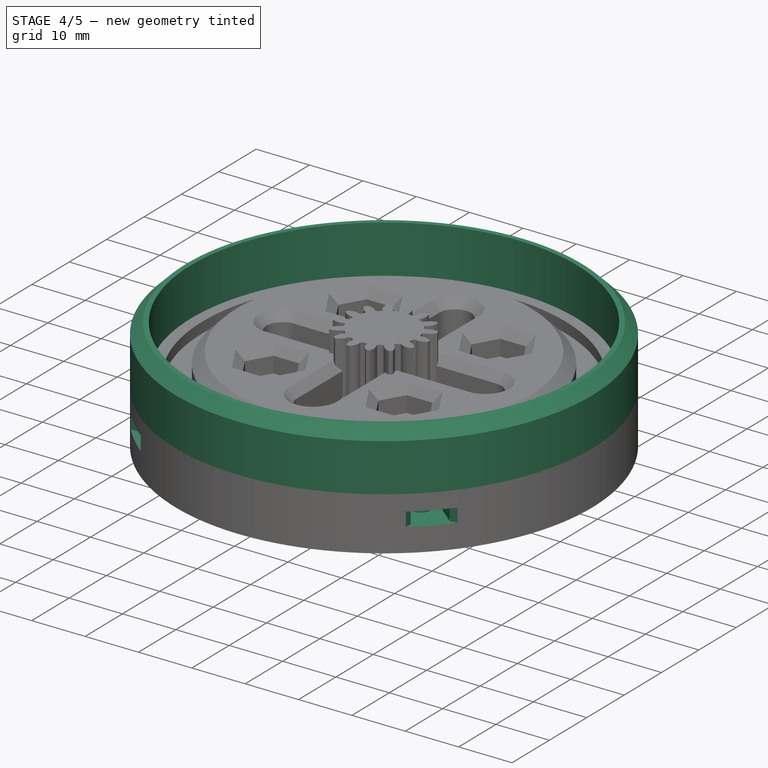
[diagram: stage 4 of 5 — iso view after this stage's code; geometry added in this stage tinted green]
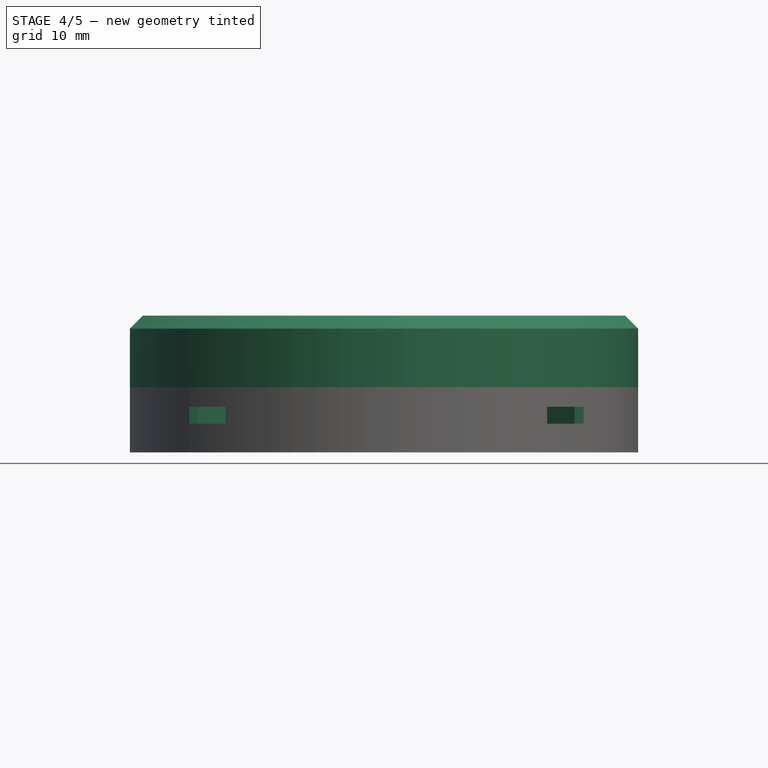
[diagram: stage 4 of 5 — front view after this stage's code; geometry added in this stage tinted green]
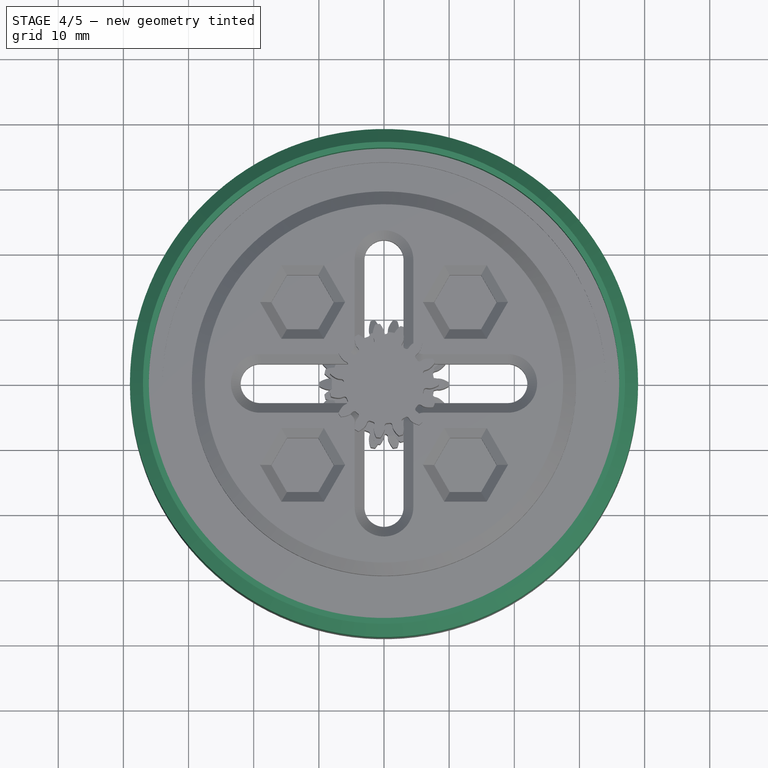
[diagram: stage 4 of 5 — top view after this stage's code; geometry added in this stage tinted green]
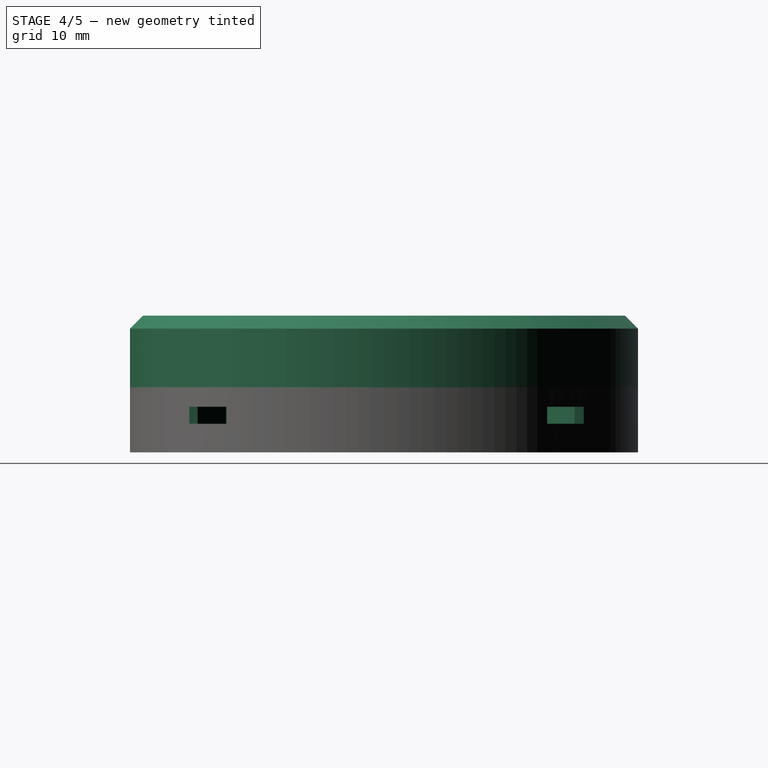
[diagram: stage 4 of 5 — right view after this stage's code; geometry added in this stage tinted green]
FEATURE [Sketcher::SketchObject] Sketch014
  ArcFitTolerance = 0
  AttachmentSupport = -> [Pad012]
  ExternalBSplineMaxDegree = 0
  ExternalBSplineTolerance = 0
  FullyConstrained = true
  InternalTolerance = 1e-06
  InvalidShape = false
  MakeInternals = false
  MapMode = 5
  Placement = pos=(0,0,10) rot=(0,0,1;0rad)
  Support = -> [Pad012]
  TreeRank = 0
  ValidateShape = true
  sketch-geometry (2):
    g0: Circle CenterX=0 CenterY=0 CenterZ=0 NormalX=0 NormalY=0 NormalZ=1 AngleXU=0 Radius=36.1
    g1: Circle CenterX=0 CenterY=0 CenterZ=0 NormalX=0 NormalY=0 NormalZ=1 AngleXU=0 Radius=39
  constraints (4):
    c: Coincident(g0,g-1)
    c: Diameter(g0) = 72.2
    c: Coincident(g1,g0)
    c: Diameter(g1) = 78
FEATURE [PartDesign::Pad] Pad013
  AddSubType = 0
  AlongSketchNormal = false
  AutoTaperInnerAngle = true
  BaseFeature = -> Pad012
  CheckUpToFaceLimits = true
  ClaimChildren = false
  Direction = (0,0,1)
  Fit = 0
  FitJoin = 0
  InnerFit = 0
  InnerFitJoin = 0
  InvalidShape = false
  Length = 11
  Length2 = 100
  NewSolid = false
  Profile = -> Sketch014
  Suppress = false
  TaperInnerAngle = 0
  TaperInnerAngleRev = 0
  TreeRank = 0
  Type = 0
  ValidateShape = true
  _ProfileBasedVersion = 0
FEATURE [Sketcher::SketchObject] Sketch018
  ArcFitTolerance = 0
  AttachmentSupport = -> [Pad013]
  ExternalBSplineMaxDegree = 0
  ExternalBSplineTolerance = 0
  FullyConstrained = true
  InternalTolerance = 1e-06
  InvalidShape = false
  MakeInternals = false
  MapMode = 5
  Placement = pos=(0,0,0) rot=(1,0,0;3.14159rad)
  Support = -> [Pad013]
  TreeRank = 0
  ValidateShape = true
  sketch-geometry (11):
    g0: Circle [constr] CenterX=0 CenterY=0 CenterZ=0 NormalX=0 NormalY=0 NormalZ=1 AngleXU=0 Radius=32.5
    g1: GeomPoint [constr] X=0 Y=0 Z=0
    g2: LineSegment [constr] StartX=22.981 StartY=22.981 StartZ=0 EndX=-22.981 EndY=22.981 EndZ=0
    g3: LineSegment [constr] StartX=-22.981 StartY=22.981 StartZ=0 EndX=-22.981 EndY=-22.981 EndZ=0
    g4: LineSegment [constr] StartX=-22.981 StartY=-22.981 StartZ=0 EndX=22.981 EndY=-22.981 EndZ=0
    g5: LineSegment [constr] StartX=22.981 StartY=-22.981 StartZ=0 EndX=22.981 EndY=22.981 EndZ=0
    g6: Circle [constr] CenterX=0 CenterY=0 CenterZ=0 NormalX=0 NormalY=0 NormalZ=1 AngleXU=0 Radius=32.5
    g7: Circle CenterX=-22.981 CenterY=22.981 CenterZ=0 NormalX=0 NormalY=0 NormalZ=1 AngleXU=0 Radius=2.5
    g8: Circle CenterX=22.981 CenterY=22.981 CenterZ=0 NormalX=0 NormalY=0 NormalZ=1 AngleXU=0 Radius=2.5
    g9: Circle CenterX=22.981 CenterY=-22.981 CenterZ=0 NormalX=0 NormalY=0 NormalZ=1 AngleXU=0 Radius=2.5
    g10: Circle CenterX=-22.981 CenterY=-22.981 CenterZ=0 NormalX=0 NormalY=0 NormalZ=1 AngleXU=0 Radius=2.5
  constraints (25):
    c: Coincident(g0,g-1)
    c: Diameter(g0) = 65
    c: Coincident(g1,g0)
    c: Coincident(g2,g3)
    c: Coincident(g3,g4)
    c: Coincident(g4,g5)
    c: Coincident(g5,g2)
    c: Equal(g2,g3)
    c: Equal(g2,g4)
    c: Equal(g2,g5)
    c: PointOnObject(g2,g6)
    c: PointOnObject(g3,g6)
    c: PointOnObject(g4,g6)
    c: PointOnObject(g5,g6)
    c: Coincident(g6,g0)
    c: PointOnObject(g5,g0)
    c: Horizontal(g2)
    c: Coincident(g7,g2)
    c: Coincident(g8,g2)
    c: Coincident(g9,g4)
    c: Coincident(g10,g3)
    c: Equal(g7,g8)
    c: Equal(g8,g9)
    c: Equal(g9,g10)
    c: Diameter(g8) = 5
FEATURE [PartDesign::Hole] Hole001
  AddSubType = 1
  BaseFeature = -> Pad013
  ClaimChildren = false
  CustomThreadClearance = 0
  Depth = 7
  DepthType = 0
  Diameter = 3.4
  DrillForDepth = false
  DrillPoint = 0
  DrillPointAngle = 118
  Fit = 0
  FitJoin = 0
  HoleCutCountersinkAngle = 90
  HoleCutCustomValues = false
  HoleCutDepth = 0
  HoleCutDiameter = 6.1
  HoleCutType = 0
  InnerFit = 0
  InnerFitJoin = 0
  InvalidShape = false
  ModelThread = false
  NewSolid = false
  Profile = -> Sketch018
  Suppress = false
  Tapered = false
  TaperedAngle = 90
  ThreadClass = 0
  ThreadDepth = 7
  ThreadDepthType = 0
  ThreadDirection = 0
  ThreadFit = 0
  ThreadSize = 9
  ThreadType = 1
  Threaded = false
  TreeRank = 0
  UseCustomThreadClearance = false
  ValidateShape = true
  _ProfileBasedVersion = 0
FEATURE [PartDesign::Chamfer] Chamfer001
  AddSubType = 0
  Angle = 45
  Base = -> Hole001 [Edge279]
  BaseFeature = -> Hole001
  ChamferType = 0
  FlipDirection = false
  InvalidShape = false
  NewSolid = false
  Size = 2
  Size2 = 1
  SupportTransform = false
  Suppress = false
  TreeRank = 0
  ValidateShape = true
FEATURE [PartDesign::Body] Body007  label="Bottom cap"
  AutoGroupSolids = false
  ClaimAllChildren = false
  ExportMode = 0
  Group = -> [ShapeBinder001,Pad015,Sketch015,Pocket007,Sketch016,Pocket008,Sketch017,Hole,Binder,Hole002,Chamfer002]
  InvalidShape = false
  Origin = -> Origin007
  Tip = -> Chamfer002
  TreeRank = 0
  ValidateShape = true
  _ExportChildren = -> [Pad015,Pocket007,Pocket008,Hole,Hole002,Chamfer002]
  _GroupVersion = 1
FEATURE [Sketcher::SketchObject] Sketch021
  ArcFitTolerance = 0
  AttachmentOffset = pos=(0,0,-4.4) rot=(0,0,1;0rad)
  AttachmentSupport = -> [Chamfer001]
  ExternalBSplineMaxDegree = 0
  ExternalBSplineTolerance = 0
  FullyConstrained = true
  InternalTolerance = 1e-06
  InvalidShape = false
  MakeInternals = false
  MapMode = 5
  Placement = pos=(0,0,4.4) rot=(1,0,0;3.14159rad)
  Support = -> [Chamfer001]
  TreeRank = 0
  ValidateShape = true
  sketch-geometry (15):
    g0: LineSegment [constr] StartX=22.98 StartY=22.98 StartZ=0 EndX=-22.98 EndY=22.98 EndZ=0
    g1: LineSegment [constr] StartX=-22.98 StartY=22.98 StartZ=0 EndX=-22.98 EndY=-22.98 EndZ=0
    g2: LineSegment [constr] StartX=-22.98 StartY=-22.98 StartZ=0 EndX=22.98 EndY=-22.98 EndZ=0
    g3: LineSegment [constr] StartX=22.98 StartY=-22.98 StartZ=0 EndX=22.98 EndY=22.98 EndZ=0
    g4: Circle [constr] CenterX=0 CenterY=0 CenterZ=0 NormalX=0 NormalY=0 NormalZ=1 AngleXU=0 Radius=32.4986
    g5: LineSegment StartX=-24.1942 StartY=19.7048 StartZ=0 EndX=-33.7675 EndY=31.2527 EndZ=0
    g6: LineSegment StartX=-33.7675 StartY=31.2527 StartZ=0 EndX=-29.1098 EndY=35.1139 EndZ=0
    g7: LineSegment StartX=-29.1098 StartY=35.1139 StartZ=0 EndX=-19.5365 EndY=23.5661 EndZ=0
    g8: LineSegment StartX=-20.7507 StartY=20.2909 StartZ=0 EndX=-19.5365 EndY=23.5661 EndZ=0
    g9: LineSegment [constr] StartX=-19.5365 StartY=23.5661 StartZ=0 EndX=-21.7658 EndY=26.2552 EndZ=0
    g10: LineSegment [constr] StartX=-21.7658 StartY=26.2552 StartZ=0 EndX=-25.2093 EndY=25.6691 EndZ=0
    g11: LineSegment [constr] StartX=-25.2093 StartY=25.6691 StartZ=0 EndX=-26.4235 EndY=22.3939 EndZ=0
    g12: LineSegment [constr] StartX=-26.4235 StartY=22.3939 StartZ=0 EndX=-24.1942 EndY=19.7048 EndZ=0
    g13: LineSegment StartX=-24.1942 StartY=19.7048 StartZ=0 EndX=-20.7507 EndY=20.2909 EndZ=0
    g14: Circle [constr] CenterX=-22.98 CenterY=22.98 CenterZ=0 NormalX=0 NormalY=0 NormalZ=1 AngleXU=0 Radius=3.49297
  constraints (38):
    c: Coincident(g0,g1)
    c: Coincident(g1,g2)
    c: Coincident(g2,g3)
    c: Coincident(g3,g0)
    c: Equal(g0,g1)
    c: Equal(g0,g2)
    c: Equal(g0,g3)
    c: PointOnObject(g0,g4)
    c: PointOnObject(g1,g4)
    c: PointOnObject(g2,g4)
    c: PointOnObject(g3,g4)
    c: Coincident(g4,g-1)
    c: Horizontal(g0)
    c: Distance(g0) = 45.96
    c: Coincident(g5,g6)
    c: Coincident(g6,g7)
    c: Perpendicular(g7,g6)
    c: Perpendicular(g5,g6)
    c: Distance(g7) = 15
    c: Distance(g6) = 6.05
    c: Coincident(g8,g9)
    c: Coincident(g9,g10)
    c: Coincident(g10,g11)
    c: Coincident(g11,g12)
    c: Coincident(g12,g13)
    c: Coincident(g13,g8)
    c: Equal(g8, g9-g13) x5
    c: PointOnObject(g8,g14)
    c: PointOnObject(g9,g14)
    c: PointOnObject(g10,g14)
    c: PointOnObject(g11,g14)
    c: PointOnObject(g12,g14)
    c: PointOnObject(g13,g14)
    c: Coincident(g14,g0)
    c: Parallel(g9,g7)
    c: Perpendicular(g4,g9)
    c: Coincident(g7,g8)
    c: Coincident(g5,g13)
FEATURE [PartDesign::Pocket] Pocket011
  AddSubType = 1
  AutoTaperInnerAngle = true
  BaseFeature = -> Chamfer001
  CheckUpToFaceLimits = true
  ClaimChildren = false
  Fit = 0
  FitJoin = 0
  InnerFit = 0
  InnerFitJoin = 0
  InvalidShape = false
  Length = 2.6
  Length2 = 3
  NewSolid = false
  Profile = -> Sketch021
  Suppress = false
  TaperInnerAngle = 0
  TaperInnerAngleRev = 0
  TreeRank = 0
  Type = 0
  ValidateShape = true
  _ProfileBasedVersion = 0
  _Version = 0
FEATURE [PartDesign::PolarPattern] PolarPattern
  AddSubType = 0
  Angle = 360
  Axis = -> Sketch021 [N_Axis]
  BaseFeature = -> Pocket011
  CopyShape = true
  InvalidShape = false
  NewSolid = false
  Occurrences = 4
  OriginalSubs = -> [Pocket011]
  Originals = -> [Pocket011]
  ParallelTransform = true
  SubTransform = true
  Suppress = false
  TreeRank = 0
  ValidateShape = true
  _Version = 0
FEATURE [PartDesign::Chamfer] Chamfer004
  AddSubType = 0
  Angle = 45
  Base = -> PolarPattern [Edge17,Edge18,Edge13,Edge15,Edge11,Edge9,Edge23,Edge21]
  BaseFeature = -> PolarPattern
  ChamferType = 0
  FlipDirection = false
  InvalidShape = false
  NewSolid = false
  Size = 1
  Size2 = 1
  SupportTransform = false
  Suppress = false
  TreeRank = 0
  ValidateShape = true
FEATURE [Sketcher::SketchObject] Sketch026
  ArcFitTolerance = 0
  AttachmentSupport = -> [XZ_Plane001]
  ExternalBSplineMaxDegree = 0
  ExternalBSplineTolerance = 0
  FullyConstrained = true
  InternalTolerance = 1e-06
  InvalidShape = false
  MakeInternals = false
  MapMode = 5
  Placement = pos=(0,0,0) rot=(1,0,0;1.5708rad)
  Support = -> [XZ_Plane001]
  TreeRank = 0
  ValidateShape = true
  sketch-geometry (4):
    g0: LineSegment StartX=26.13 StartY=0 StartZ=0 EndX=23.65 EndY=1.43183 EndZ=0
    g1: LineSegment StartX=23.65 StartY=1.43183 StartZ=0 EndX=23.65 EndY=0 EndZ=0
    g2: LineSegment StartX=23.65 StartY=0 StartZ=0 EndX=24.75 EndY=0 EndZ=0
    g3: LineSegment StartX=24.75 StartY=0 StartZ=0 EndX=26.13 EndY=0 EndZ=0
  constraints (12):
    c: PointOnObject(g2,g-1)
    c: Coincident(g3,g0)
    c: Coincident(g0,g1)
    c: Coincident(g1,g2)
    c: Distance(g2) = 1.1  'm*1.25'
    c: Distance(g3) = 1.38  'm'
    c: Vertical(g1)
    c: Angle(g0,g3) = 0.523599
    c: PointOnObject(g0,g-1)
    c: Coincident(g2,g3)
    c: PointOnObject(g2,g-1)
    c: DistanceX(g-1,g2) = 24.75
FEATURE [PartDesign::Groove] Groove001
  AddSubType = 1
  Angle = 360
  Axis = (0,-2e-16,1)
  Base = (0,0,0)
  BaseFeature = -> Chamfer004
  ClaimChildren = false
  Fit = 0
  FitJoin = 0
  InnerFit = 0
  InnerFitJoin = 0
  InvalidShape = false
  NewSolid = false
  Profile = -> Sketch026
  ReferenceAxis = -> Sketch026 [V_Axis]
  Suppress = false
  TreeRank = 0
  ValidateShape = true
  _ProfileBasedVersion = 0
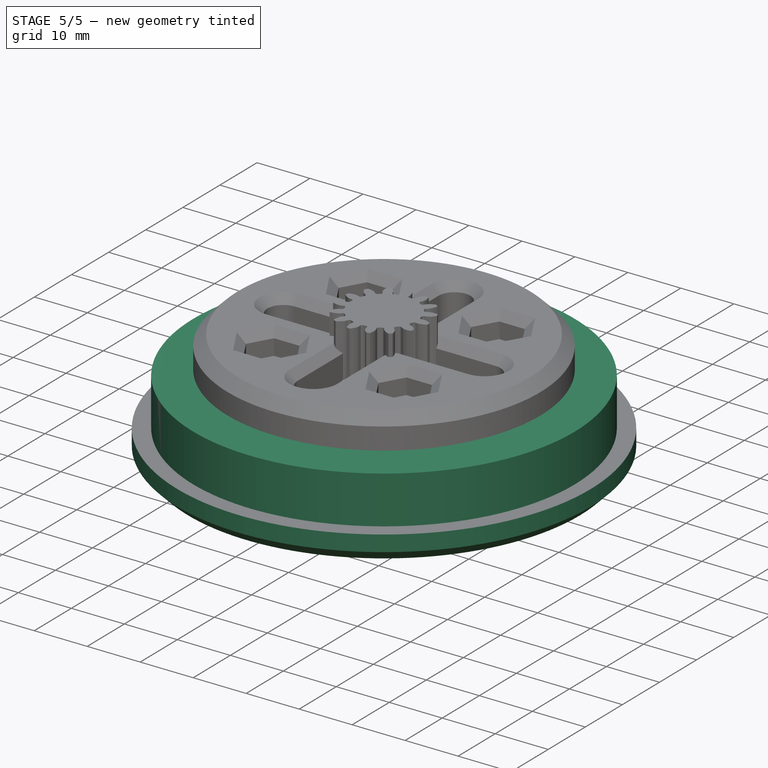
[diagram: stage 5 of 5 — iso view after this stage's code; geometry added in this stage tinted green]
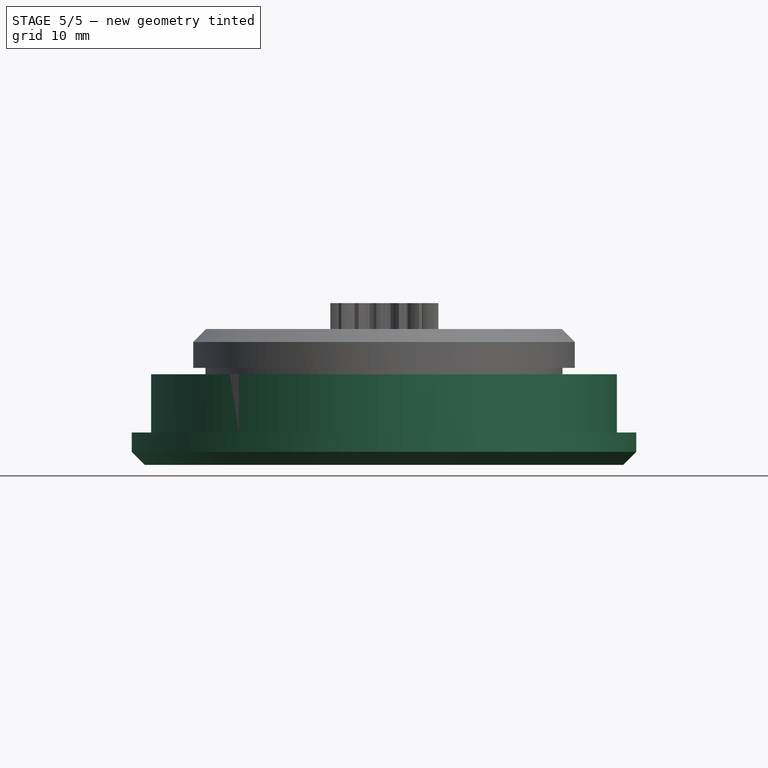
[diagram: stage 5 of 5 — front view after this stage's code; geometry added in this stage tinted green]
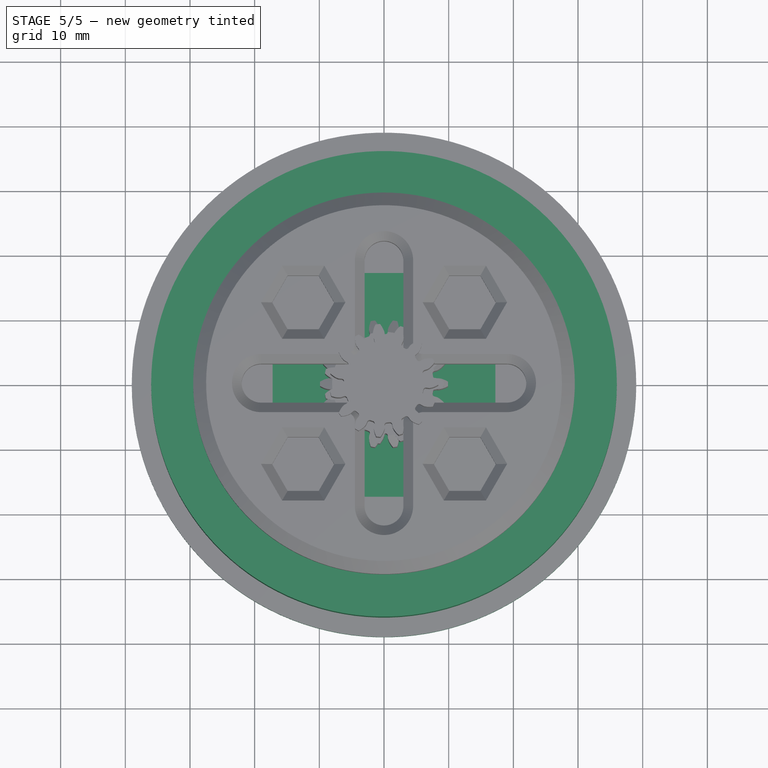
[diagram: stage 5 of 5 — top view after this stage's code; geometry added in this stage tinted green]
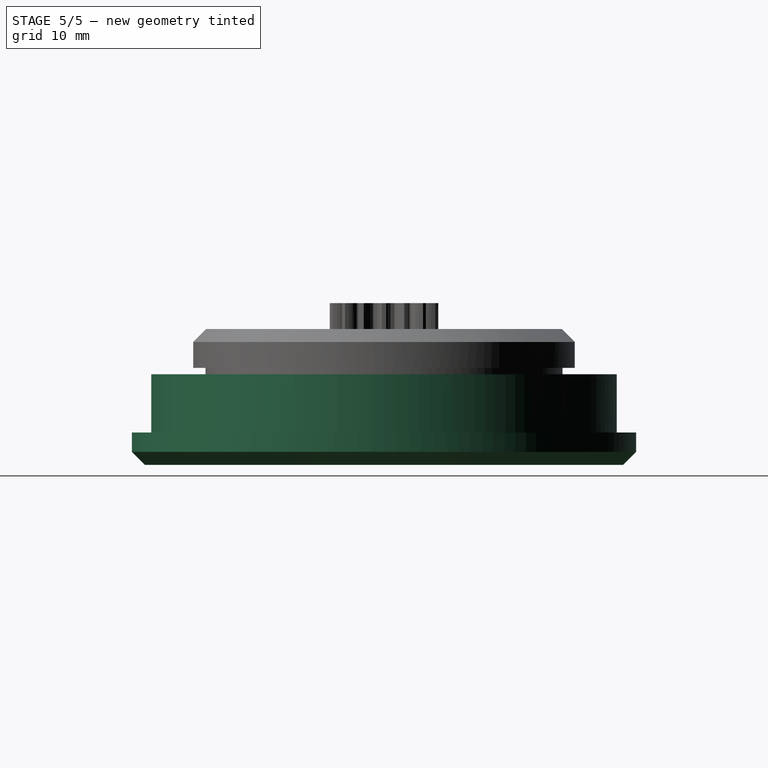
[diagram: stage 5 of 5 — right view after this stage's code; geometry added in this stage tinted green]
FEATURE [Sketcher::SketchObject] Sketch011
  ArcFitTolerance = 0
  AttachmentSupport = -> [XY_Plane006]
  ExternalBSplineMaxDegree = 0
  ExternalBSplineTolerance = 0
  FullyConstrained = true
  InternalTolerance = 1e-06
  InvalidShape = false
  MakeInternals = false
  MapMode = 5
  Support = -> [XY_Plane006]
  TreeRank = 0
  ValidateShape = true
  sketch-geometry (2):
    g0: Circle CenterX=0 CenterY=0 CenterZ=0 NormalX=0 NormalY=0 NormalZ=1 AngleXU=0 Radius=27.5
    g1: Circle CenterX=0 CenterY=0 CenterZ=0 NormalX=0 NormalY=0 NormalZ=1 AngleXU=0 Radius=36
  constraints (4):
    c: Coincident(g0,g-1)
    c: Diameter(g0) = 55
    c: Coincident(g1,g0)
    c: Diameter(g1) = 72
FEATURE [PartDesign::Pad] Pad010
  AddSubType = 0
  AlongSketchNormal = false
  AutoTaperInnerAngle = true
  CheckUpToFaceLimits = true
  ClaimChildren = false
  Direction = (0,0,1)
  Fit = 0
  FitJoin = 0
  InnerFit = 0
  InnerFitJoin = 0
  InvalidShape = false
  Length = 9
  Length2 = 100
  NewSolid = false
  Profile = -> Sketch011
  Suppress = false
  TaperInnerAngle = 0
  TaperInnerAngleRev = 0
  TreeRank = 0
  Type = 0
  ValidateShape = true
  _ProfileBasedVersion = 0
FEATURE [PartDesign::ShapeBinder] ShapeBinder001
  InvalidShape = false
  Support = -> [Pad013]
  TraceSupport = false
  TreeRank = 0
  ValidateShape = true
FEATURE [PartDesign::Pad] Pad015
  AddSubType = 0
  AlongSketchNormal = false
  AutoTaperInnerAngle = true
  CheckUpToFaceLimits = true
  ClaimChildren = false
  Direction = (0,0,1)
  Fit = 0
  FitJoin = 0
  InnerFit = 0
  InnerFitJoin = 0
  InvalidShape = false
  Length = 5
  Length2 = 100
  NewSolid = false
  Profile = -> ShapeBinder001
  Reversed = true
  Suppress = false
  TaperInnerAngle = 0
  TaperInnerAngleRev = 0
  TreeRank = 0
  Type = 0
  ValidateShape = true
  _ProfileBasedVersion = 0
FEATURE [Sketcher::SketchObject] Sketch015
  ArcFitTolerance = 0
  AttachmentSupport = -> [Pad015]
  ExternalBSplineMaxDegree = 0
  ExternalBSplineTolerance = 0
  FullyConstrained = true
  InternalTolerance = 1e-06
  InvalidShape = false
  MakeInternals = false
  MapMode = 5
  Placement = pos=(0,0,-5) rot=(1,0,0;3.14159rad)
  Support = -> [Pad015]
  TreeRank = 0
  ValidateShape = true
  sketch-geometry (1):
    g0: Circle CenterX=0 CenterY=0 CenterZ=0 NormalX=0 NormalY=0 NormalZ=1 AngleXU=0 Radius=11.25
  constraints (2):
    c: Coincident(g0,g-1)
    c: Diameter(g0) = 22.5
FEATURE [PartDesign::Pocket] Pocket007
  AddSubType = 1
  AutoTaperInnerAngle = true
  BaseFeature = -> Pad015
  CheckUpToFaceLimits = true
  ClaimChildren = false
  Fit = 0
  FitJoin = 0
  InnerFit = 0
  InnerFitJoin = 0
  InvalidShape = false
  Length = 2.2
  Length2 = 100
  NewSolid = false
  Profile = -> Sketch015
  Suppress = false
  TaperInnerAngle = 0
  TaperInnerAngleRev = 0
  TreeRank = 0
  Type = 0
  ValidateShape = true
  _ProfileBasedVersion = 0
  _Version = 0
FEATURE [Sketcher::SketchObject] Sketch016
  ArcFitTolerance = 0
  AttachmentSupport = -> [Pocket007]
  ExternalBSplineMaxDegree = 0
  ExternalBSplineTolerance = 0
  FullyConstrained = true
  InternalTolerance = 1e-06
  InvalidShape = false
  MakeInternals = false
  MapMode = 5
  Support = -> [Pocket007]
  TreeRank = 0
  ValidateShape = true
  sketch-geometry (1):
    g0: Circle CenterX=0 CenterY=0 CenterZ=0 NormalX=0 NormalY=0 NormalZ=1 AngleXU=0 Radius=3.5
  constraints (2):
    c: Coincident(g0,g-1)
    c: Diameter(g0) = 7
FEATURE [PartDesign::Pocket] Pocket008
  AddSubType = 1
  AutoTaperInnerAngle = true
  BaseFeature = -> Pocket007
  CheckUpToFaceLimits = true
  ClaimChildren = false
  Fit = 0
  FitJoin = 0
  InnerFit = 0
  InnerFitJoin = 0
  InvalidShape = false
  Length = 5
  Length2 = 100
  NewSolid = false
  Profile = -> Sketch016
  Suppress = false
  TaperInnerAngle = 0
  TaperInnerAngleRev = 0
  TreeRank = 0
  Type = 0
  ValidateShape = true
  _ProfileBasedVersion = 0
  _Version = 0
FEATURE [Sketcher::SketchObject] Sketch017
  ArcFitTolerance = 0
  AttachmentSupport = -> [Pocket008]
  ExternalBSplineMaxDegree = 0
  ExternalBSplineTolerance = 0
  FullyConstrained = true
  InternalTolerance = 1e-06
  InvalidShape = false
  MakeInternals = false
  MapMode = 5
  Support = -> [Pocket008]
  TreeRank = 0
  ValidateShape = true
  sketch-geometry (9):
    g0: LineSegment [constr] StartX=-15.5 StartY=-15.5 StartZ=0 EndX=-15.5 EndY=15.5 EndZ=0
    g1: LineSegment [constr] StartX=-15.5 StartY=15.5 StartZ=0 EndX=15.5 EndY=15.5 EndZ=0
    g2: LineSegment [constr] StartX=15.5 StartY=15.5 StartZ=0 EndX=15.5 EndY=-15.5 EndZ=0
    g3: LineSegment [constr] StartX=15.5 StartY=-15.5 StartZ=0 EndX=-15.5 EndY=-15.5 EndZ=0
    g4: GeomPoint [constr] X=2e-16 Y=3e-16 Z=0
    g5: Circle CenterX=-15.5 CenterY=15.5 CenterZ=0 NormalX=0 NormalY=0 NormalZ=1 AngleXU=0 Radius=2.5
    g6: Circle CenterX=15.5 CenterY=15.5 CenterZ=0 NormalX=0 NormalY=0 NormalZ=1 AngleXU=0 Radius=2.5
    g7: Circle CenterX=15.5 CenterY=-15.5 CenterZ=0 NormalX=0 NormalY=0 NormalZ=1 AngleXU=0 Radius=2.5
    g8: Circle CenterX=-15.5 CenterY=-15.5 CenterZ=0 NormalX=0 NormalY=0 NormalZ=1 AngleXU=0 Radius=2.5
  constraints (20):
    c: Coincident(g0,g1)
    c: Coincident(g1,g2)
    c: Coincident(g2,g3)
    c: Coincident(g3,g0)
    c: Horizontal(g1)
    c: Horizontal(g3)
    c: Vertical(g0)
    c: Vertical(g2)
    c: Symmetric(g1,g0,g4)
    c: Coincident(g4,g-1)
    c: Equal(g1,g2)
    c: Distance(g1) = 31
    c: Coincident(g5,g0)
    c: Coincident(g6,g1)
    c: Coincident(g7,g2)
    c: Coincident(g8,g0)
    c: Equal(g8,g7)
    c: Equal(g7,g6)
    c: Equal(g6,g5)
    c: Diameter(g6) = 5
FEATURE [PartDesign::Hole] Hole
  AddSubType = 1
  BaseFeature = -> Pocket008
  ClaimChildren = false
  CustomThreadClearance = 0
  Depth = 25
  DepthType = 0
  Diameter = 3.4
  DrillForDepth = false
  DrillPoint = 1
  DrillPointAngle = 118
  Fit = 0
  FitJoin = 0
  HoleCutCountersinkAngle = 90
  HoleCutCustomValues = false
  HoleCutDepth = 0.4
  HoleCutDiameter = 6.9
  HoleCutType = 2
  InnerFit = 0
  InnerFitJoin = 0
  InvalidShape = false
  ModelThread = false
  NewSolid = false
  Profile = -> Sketch017
  Suppress = false
  Tapered = false
  TaperedAngle = 90
  ThreadClass = 0
  ThreadDepth = 25
  ThreadDepthType = 0
  ThreadDirection = 0
  ThreadFit = 0
  ThreadSize = 9
  ThreadType = 1
  Threaded = false
  TreeRank = 0
  UseCustomThreadClearance = false
  ValidateShape = true
  _ProfileBasedVersion = 0
FEATURE [PartDesign::SubShapeBinder] Binder  label="Binder(Sketch018)"
  BindCopyOnChange = 0
  BindMode = 0
  ClaimChildren = false
  Context = -> Body007 [Binder.]
  EdgeTolerance = 1e-06
  FillStyle = 0
  Fuse = false
  InvalidShape = false
  MakeFace = true
  MergeEdges = true
  OffsetFill = false
  OffsetIntersection = false
  OffsetJoinType = 0
  OffsetOpenResult = false
  Outline = false
  PartialLoad = false
  Placement = pos=(0,0,-5) rot=(0,0,1;0rad)
  Refine = true
  Relative = true
  SplitEdges = false
  Support = -> [Body001[Sketch018.]]
  TightBound = false
  TreeRank = 0
  ValidateShape = true
  _Version = 8
FEATURE [PartDesign::Hole] Hole002
  AddSubType = 1
  BaseFeature = -> Hole
  ClaimChildren = false
  CustomThreadClearance = 0
  Depth = 10
  DepthType = 0
  Diameter = 3.4
  DrillForDepth = false
  DrillPoint = 1
  DrillPointAngle = 118
  Fit = 0
  FitJoin = 0
  HoleCutCountersinkAngle = 90
  HoleCutCustomValues = false
  HoleCutDepth = 0.4
  HoleCutDiameter = 6.9
  HoleCutType = 2
  InnerFit = 0
  InnerFitJoin = 0
  InvalidShape = false
  ModelThread = false
  NewSolid = false
  Profile = -> Binder
  Reversed = true
  Suppress = false
  Tapered = false
  TaperedAngle = 90
  ThreadClass = 0
  ThreadDepth = 10
  ThreadDepthType = 0
  ThreadDirection = 0
  ThreadFit = 0
  ThreadSize = 9
  ThreadType = 1
  Threaded = false
  TreeRank = 0
  UseCustomThreadClearance = false
  ValidateShape = true
  _ProfileBasedVersion = 0
FEATURE [PartDesign::Chamfer] Chamfer002
  AddSubType = 0
  Angle = 45
  Base = -> Hole002 [Edge3]
  BaseFeature = -> Hole002
  ChamferType = 0
  FlipDirection = false
  InvalidShape = false
  NewSolid = false
  Size = 2
  Size2 = 1
  SupportTransform = false
  Suppress = false
  TreeRank = 0
  ValidateShape = true
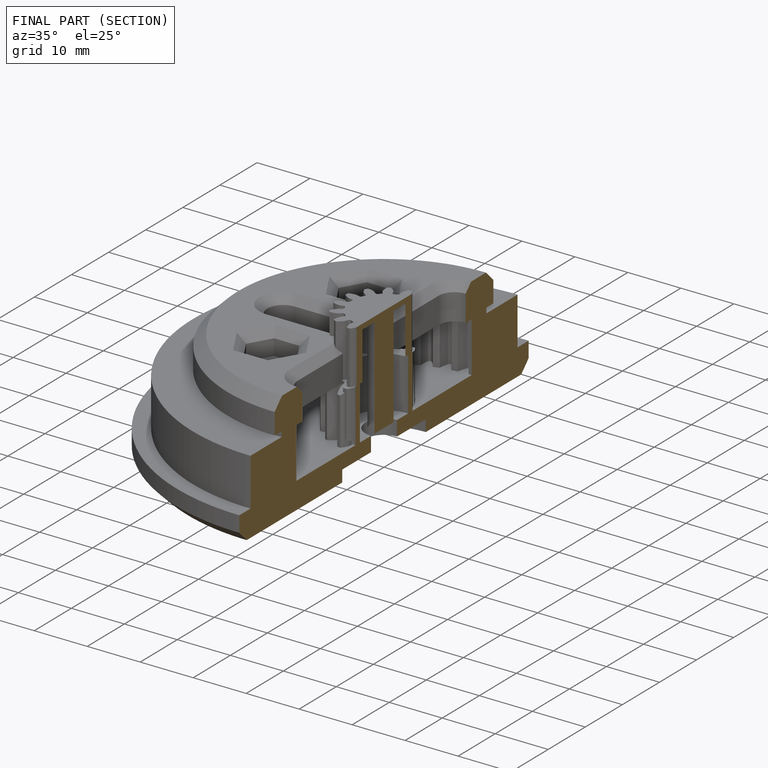
[diagram: finished part — half-section view (interior)]
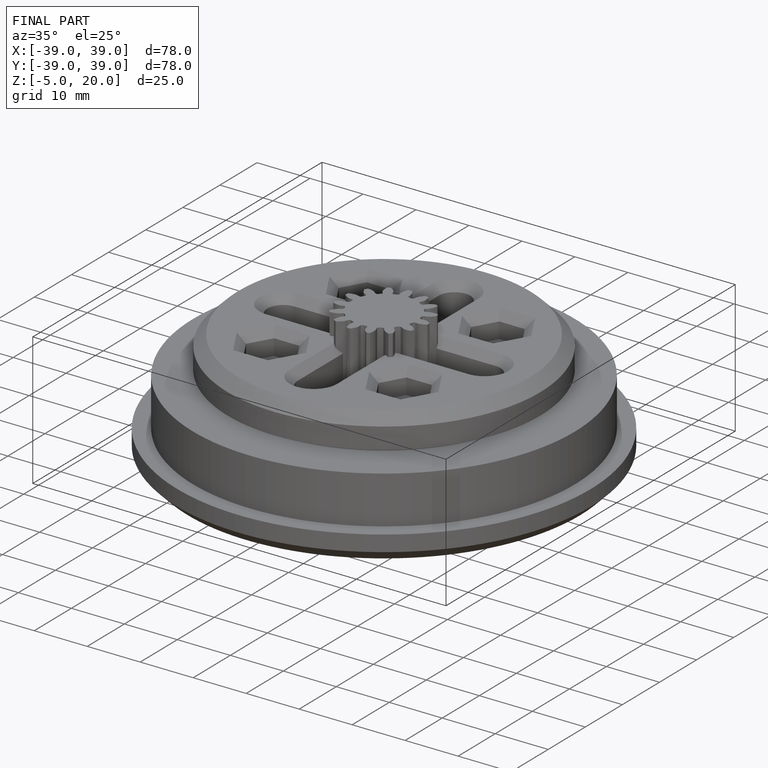
[diagram: finished part — iso view with bounding-box wireframe]
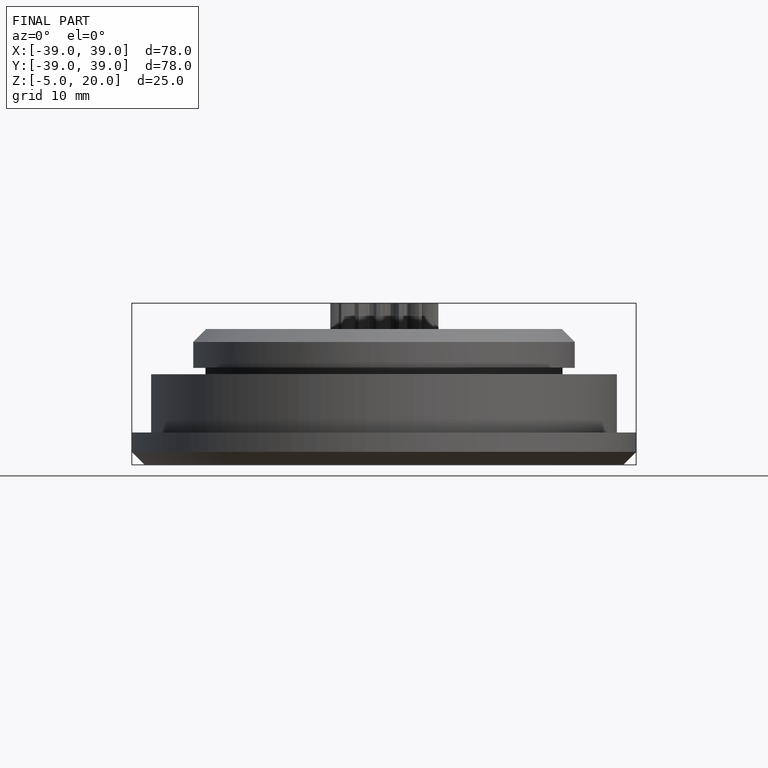
[diagram: finished part — front view with bounding-box wireframe]
